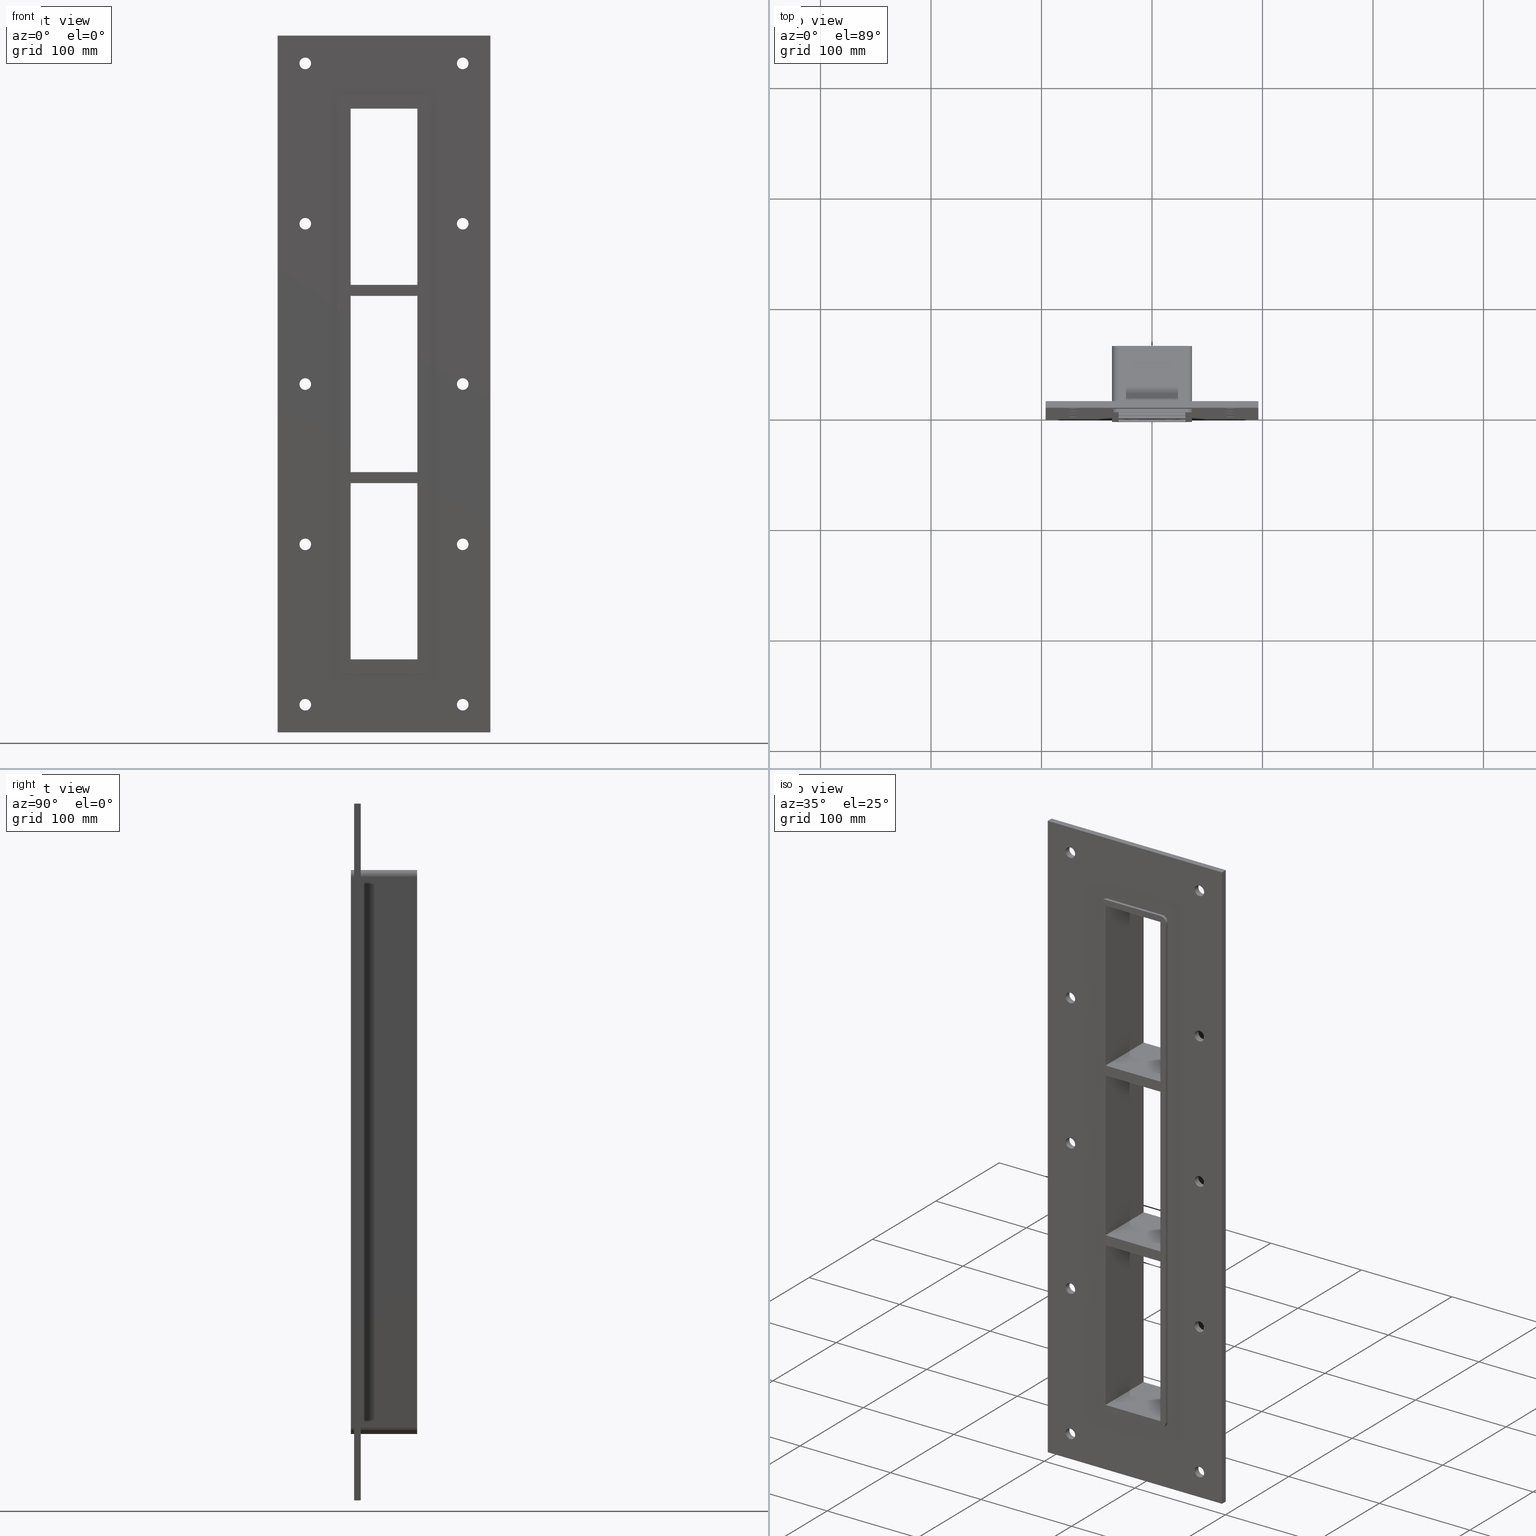
[diagram: canonical four-view strip — front | top / right | iso, engineering-drawing reading convention]
A machine part, canonical four-view strip (front | top / right | iso — engineering-drawing reading convention). The complete STEP part file that produces these views, byte-faithful:
ISO-10303-21;
HEADER;
/****************************************************************
 * Generated by software with PDElib inside                    *
 * PDElib Version v51a, created Wed 11/30/2011                  *
 * ITI Transcendata (http://www.transcendata.com/)              *
 ****************************************************************/
FILE_DESCRIPTION((''),'2;1');
FILE_NAME('L:\\roxtec-se\\Projects\\Ongoing_Projects\\12403 Transit Designer\\Product-data\\Product Data\\Reviwed & Approved\\Review\\GH\\STEP\\GH3+3+3X1.stp','2015-02-20T11:14:46',('se-emikul'),(''),'Autodesk Inventor 2013','Autodesk Inventor 2013','');
FILE_SCHEMA(('AUTOMOTIVE_DESIGN { 1 0 10303 214 1 1 1 1 }'));
ENDSEC;
DATA;
#5=APPLICATION_CONTEXT('automotive design');
#6=APPLICATION_PROTOCOL_DEFINITION('International Standard','automotive_design',2001,#5);
#7=PRODUCT_CONTEXT('',#5,'mechanical');
#8=PRODUCT('GH3+3+3X1','GH3+3+3X1',$,(#7));
#9=PRODUCT_RELATED_PRODUCT_CATEGORY('part',$,(#8));
#10=PRODUCT_DEFINITION_FORMATION('',$,#8);
#11=PRODUCT_DEFINITION_CONTEXT('part definition',#5,'design');
#12=PRODUCT_DEFINITION('',$,#10,#11);
#18=(NAMED_UNIT(*)PLANE_ANGLE_UNIT()SI_UNIT($,.RADIAN.));
#19=DIMENSIONAL_EXPONENTS(0.0,0.0,0.0,0.0,0.0,0.0,0.0);
#20=PLANE_ANGLE_MEASURE_WITH_UNIT(PLANE_ANGLE_MEASURE(0.0174532925),#18);
#24=(CONVERSION_BASED_UNIT('DEGREE',#20)NAMED_UNIT(#19)PLANE_ANGLE_UNIT());
#28=(NAMED_UNIT(*)SI_UNIT($,.STERADIAN.)SOLID_ANGLE_UNIT());
#32=(LENGTH_UNIT()NAMED_UNIT(*)SI_UNIT(.MILLI.,.METRE.));
#34=UNCERTAINTY_MEASURE_WITH_UNIT(LENGTH_MEASURE(0.01),#32,'DISTANCE_ACCURACY_VALUE','');
#36=(GEOMETRIC_REPRESENTATION_CONTEXT(3)GLOBAL_UNCERTAINTY_ASSIGNED_CONTEXT((#34))GLOBAL_UNIT_ASSIGNED_CONTEXT((#24,#28,#32))REPRESENTATION_CONTEXT('None','None'));
#37=AXIS2_PLACEMENT_3D('',#38,#39,#40);
#38=CARTESIAN_POINT('',(0.0,0.0,0.0));
#39=DIRECTION('',(0.0,0.0,1.0));
#40=DIRECTION('',(1.0,0.0,0.0));
#41=SHAPE_REPRESENTATION('',(#37),#36);
#42=PRODUCT_DEFINITION_SHAPE('','',#12);
#43=SHAPE_DEFINITION_REPRESENTATION(#42,#41);
#49=(NAMED_UNIT(*)PLANE_ANGLE_UNIT()SI_UNIT($,.RADIAN.));
#50=DIMENSIONAL_EXPONENTS(0.0,0.0,0.0,0.0,0.0,0.0,0.0);
#51=PLANE_ANGLE_MEASURE_WITH_UNIT(PLANE_ANGLE_MEASURE(0.0174532925),#49);
#55=(CONVERSION_BASED_UNIT('DEGREE',#51)NAMED_UNIT(#50)PLANE_ANGLE_UNIT());
#59=(NAMED_UNIT(*)SI_UNIT($,.STERADIAN.)SOLID_ANGLE_UNIT());
#63=(LENGTH_UNIT()NAMED_UNIT(*)SI_UNIT(.MILLI.,.METRE.));
#65=UNCERTAINTY_MEASURE_WITH_UNIT(LENGTH_MEASURE(0.000001),#63,'DISTANCE_ACCURACY_VALUE','');
#67=(GEOMETRIC_REPRESENTATION_CONTEXT(3)GLOBAL_UNCERTAINTY_ASSIGNED_CONTEXT((#65))GLOBAL_UNIT_ASSIGNED_CONTEXT((#55,#59,#63))REPRESENTATION_CONTEXT('','3D'));
#68=CARTESIAN_POINT('',(-71.250000000000085,661.95656957235519,-290.25));
#69=DIRECTION('',(0.0,-1.0,0.0));
#70=DIRECTION('',(1.0,0.0,0.0));
#71=AXIS2_PLACEMENT_3D('',#68,#69,#70);
#72=CYLINDRICAL_SURFACE('',#71,5.25);
#73=CARTESIAN_POINT('',(-76.500000000000085,5.999999999999943,-290.25));
#74=VERTEX_POINT('',#73);
#75=CARTESIAN_POINT('',(-71.250000000000085,5.999999999999943,-290.25));
#76=DIRECTION('',(0.0,-1.0,0.0));
#77=DIRECTION('',(1.0,0.0,0.0));
#78=AXIS2_PLACEMENT_3D('',#75,#76,#77);
#79=CIRCLE('',#78,5.25);
#80=EDGE_CURVE('',#74,#74,#79,.T.);
#81=ORIENTED_EDGE('',*,*,#80,.F.);
#82=EDGE_LOOP('',(#81));
#83=FACE_OUTER_BOUND('',#82,.T.);
#84=CARTESIAN_POINT('',(-66.000000000000085,0.0,-290.25));
#85=VERTEX_POINT('',#84);
#86=CARTESIAN_POINT('',(-71.250000000000085,0.0,-290.25));
#87=DIRECTION('',(0.0,1.0,0.0));
#88=DIRECTION('',(1.0,0.0,0.0));
#89=AXIS2_PLACEMENT_3D('',#86,#87,#88);
#90=CIRCLE('',#89,5.25);
#91=EDGE_CURVE('',#85,#85,#90,.T.);
#92=ORIENTED_EDGE('',*,*,#91,.F.);
#93=EDGE_LOOP('',(#92));
#94=FACE_BOUND('',#93,.T.);
#95=ADVANCED_FACE('',(#83,#94),#72,.F.);
#96=CARTESIAN_POINT('',(71.249999999999915,661.95656957235519,-145.15000000000001));
#97=DIRECTION('',(0.0,-1.0,0.0));
#98=DIRECTION('',(1.0,0.0,0.0));
#99=AXIS2_PLACEMENT_3D('',#96,#97,#98);
#100=CYLINDRICAL_SURFACE('',#99,5.25);
#101=CARTESIAN_POINT('',(65.999999999999915,5.999999999999943,-145.15000000000001));
#102=VERTEX_POINT('',#101);
#103=CARTESIAN_POINT('',(71.249999999999915,5.999999999999943,-145.15000000000001));
#104=DIRECTION('',(0.0,-1.0,0.0));
#105=DIRECTION('',(1.0,0.0,0.0));
#106=AXIS2_PLACEMENT_3D('',#103,#104,#105);
#107=CIRCLE('',#106,5.25);
#108=EDGE_CURVE('',#102,#102,#107,.T.);
#109=ORIENTED_EDGE('',*,*,#108,.F.);
#110=EDGE_LOOP('',(#109));
#111=FACE_OUTER_BOUND('',#110,.T.);
#112=CARTESIAN_POINT('',(76.499999999999915,0.0,-145.15000000000001));
#113=VERTEX_POINT('',#112);
#114=CARTESIAN_POINT('',(71.249999999999915,0.0,-145.15000000000001));
#115=DIRECTION('',(0.0,1.0,0.0));
#116=DIRECTION('',(1.0,0.0,0.0));
#117=AXIS2_PLACEMENT_3D('',#114,#115,#116);
#118=CIRCLE('',#117,5.25);
#119=EDGE_CURVE('',#113,#113,#118,.T.);
#120=ORIENTED_EDGE('',*,*,#119,.F.);
#121=EDGE_LOOP('',(#120));
#122=FACE_BOUND('',#121,.T.);
#123=ADVANCED_FACE('',(#111,#122),#100,.F.);
#124=CARTESIAN_POINT('',(-71.250000000000085,661.95656957235519,-145.15000000000001));
#125=DIRECTION('',(0.0,-1.0,0.0));
#126=DIRECTION('',(1.0,0.0,0.0));
#127=AXIS2_PLACEMENT_3D('',#124,#125,#126);
#128=CYLINDRICAL_SURFACE('',#127,5.25);
#129=CARTESIAN_POINT('',(-76.500000000000085,5.999999999999943,-145.15000000000001));
#130=VERTEX_POINT('',#129);
#131=CARTESIAN_POINT('',(-71.250000000000085,5.999999999999943,-145.15000000000001));
#132=DIRECTION('',(0.0,-1.0,0.0));
#133=DIRECTION('',(1.0,0.0,0.0));
#134=AXIS2_PLACEMENT_3D('',#131,#132,#133);
#135=CIRCLE('',#134,5.25);
#136=EDGE_CURVE('',#130,#130,#135,.T.);
#137=ORIENTED_EDGE('',*,*,#136,.F.);
#138=EDGE_LOOP('',(#137));
#139=FACE_OUTER_BOUND('',#138,.T.);
#140=CARTESIAN_POINT('',(-66.000000000000085,0.0,-145.15000000000001));
#141=VERTEX_POINT('',#140);
#142=CARTESIAN_POINT('',(-71.250000000000085,0.0,-145.15000000000001));
#143=DIRECTION('',(0.0,1.0,0.0));
#144=DIRECTION('',(1.0,0.0,0.0));
#145=AXIS2_PLACEMENT_3D('',#142,#143,#144);
#146=CIRCLE('',#145,5.25);
#147=EDGE_CURVE('',#141,#141,#146,.T.);
#148=ORIENTED_EDGE('',*,*,#147,.F.);
#149=EDGE_LOOP('',(#148));
#150=FACE_BOUND('',#149,.T.);
#151=ADVANCED_FACE('',(#139,#150),#128,.F.);
#152=CARTESIAN_POINT('',(71.249999999999915,661.95656957235519,-0.050000000000026));
#153=DIRECTION('',(0.0,-1.0,0.0));
#154=DIRECTION('',(1.0,0.0,0.0));
#155=AXIS2_PLACEMENT_3D('',#152,#153,#154);
#156=CYLINDRICAL_SURFACE('',#155,5.25);
#157=CARTESIAN_POINT('',(65.999999999999915,5.999999999999943,-0.050000000000026));
#158=VERTEX_POINT('',#157);
#159=CARTESIAN_POINT('',(71.249999999999915,5.999999999999943,-0.050000000000026));
#160=DIRECTION('',(0.0,-1.0,0.0));
#161=DIRECTION('',(1.0,0.0,0.0));
#162=AXIS2_PLACEMENT_3D('',#159,#160,#161);
#163=CIRCLE('',#162,5.25);
#164=EDGE_CURVE('',#158,#158,#163,.T.);
#165=ORIENTED_EDGE('',*,*,#164,.F.);
#166=EDGE_LOOP('',(#165));
#167=FACE_OUTER_BOUND('',#166,.T.);
#168=CARTESIAN_POINT('',(76.499999999999915,0.0,-0.050000000000026));
#169=VERTEX_POINT('',#168);
#170=CARTESIAN_POINT('',(71.249999999999915,0.0,-0.050000000000026));
#171=DIRECTION('',(0.0,1.0,0.0));
#172=DIRECTION('',(1.0,0.0,0.0));
#173=AXIS2_PLACEMENT_3D('',#170,#171,#172);
#174=CIRCLE('',#173,5.25);
#175=EDGE_CURVE('',#169,#169,#174,.T.);
#176=ORIENTED_EDGE('',*,*,#175,.F.);
#177=EDGE_LOOP('',(#176));
#178=FACE_BOUND('',#177,.T.);
#179=ADVANCED_FACE('',(#167,#178),#156,.F.);
#180=CARTESIAN_POINT('',(-71.250000000000085,661.95656957235519,-0.050000000000026));
#181=DIRECTION('',(0.0,-1.0,0.0));
#182=DIRECTION('',(1.0,0.0,0.0));
#183=AXIS2_PLACEMENT_3D('',#180,#181,#182);
#184=CYLINDRICAL_SURFACE('',#183,5.25);
#185=CARTESIAN_POINT('',(-76.500000000000085,5.999999999999943,-0.050000000000026));
#186=VERTEX_POINT('',#185);
#187=CARTESIAN_POINT('',(-71.250000000000085,5.999999999999943,-0.050000000000026));
#188=DIRECTION('',(0.0,-1.0,0.0));
#189=DIRECTION('',(1.0,0.0,0.0));
#190=AXIS2_PLACEMENT_3D('',#187,#188,#189);
#191=CIRCLE('',#190,5.25);
#192=EDGE_CURVE('',#186,#186,#191,.T.);
#193=ORIENTED_EDGE('',*,*,#192,.F.);
#194=EDGE_LOOP('',(#193));
#195=FACE_OUTER_BOUND('',#194,.T.);
#196=CARTESIAN_POINT('',(-66.000000000000085,0.0,-0.050000000000026));
#197=VERTEX_POINT('',#196);
#198=CARTESIAN_POINT('',(-71.250000000000085,0.0,-0.050000000000026));
#199=DIRECTION('',(0.0,1.0,0.0));
#200=DIRECTION('',(1.0,0.0,0.0));
#201=AXIS2_PLACEMENT_3D('',#198,#199,#200);
#202=CIRCLE('',#201,5.25);
#203=EDGE_CURVE('',#197,#197,#202,.T.);
#204=ORIENTED_EDGE('',*,*,#203,.F.);
#205=EDGE_LOOP('',(#204));
#206=FACE_BOUND('',#205,.T.);
#207=ADVANCED_FACE('',(#195,#206),#184,.F.);
#208=CARTESIAN_POINT('',(71.249999999999915,661.95656957235519,145.04999999999995));
#209=DIRECTION('',(0.0,-1.0,0.0));
#210=DIRECTION('',(1.0,0.0,0.0));
#211=AXIS2_PLACEMENT_3D('',#208,#209,#210);
#212=CYLINDRICAL_SURFACE('',#211,5.25);
#213=CARTESIAN_POINT('',(65.999999999999915,5.999999999999943,145.04999999999995));
#214=VERTEX_POINT('',#213);
#215=CARTESIAN_POINT('',(71.249999999999915,5.999999999999943,145.04999999999995));
#216=DIRECTION('',(0.0,-1.0,0.0));
#217=DIRECTION('',(1.0,0.0,0.0));
#218=AXIS2_PLACEMENT_3D('',#215,#216,#217);
#219=CIRCLE('',#218,5.25);
#220=EDGE_CURVE('',#214,#214,#219,.T.);
#221=ORIENTED_EDGE('',*,*,#220,.F.);
#222=EDGE_LOOP('',(#221));
#223=FACE_OUTER_BOUND('',#222,.T.);
#224=CARTESIAN_POINT('',(76.499999999999915,0.0,145.04999999999995));
#225=VERTEX_POINT('',#224);
#226=CARTESIAN_POINT('',(71.249999999999915,0.0,145.04999999999995));
#227=DIRECTION('',(0.0,1.0,0.0));
#228=DIRECTION('',(1.0,0.0,0.0));
#229=AXIS2_PLACEMENT_3D('',#226,#227,#228);
#230=CIRCLE('',#229,5.25);
#231=EDGE_CURVE('',#225,#225,#230,.T.);
#232=ORIENTED_EDGE('',*,*,#231,.F.);
#233=EDGE_LOOP('',(#232));
#234=FACE_BOUND('',#233,.T.);
#235=ADVANCED_FACE('',(#223,#234),#212,.F.);
#236=CARTESIAN_POINT('',(-71.250000000000085,661.95656957235519,145.04999999999995));
#237=DIRECTION('',(0.0,-1.0,0.0));
#238=DIRECTION('',(1.0,0.0,0.0));
#239=AXIS2_PLACEMENT_3D('',#236,#237,#238);
#240=CYLINDRICAL_SURFACE('',#239,5.25);
#241=CARTESIAN_POINT('',(-76.500000000000085,5.999999999999943,145.04999999999995));
#242=VERTEX_POINT('',#241);
#243=CARTESIAN_POINT('',(-71.250000000000085,5.999999999999943,145.04999999999995));
#244=DIRECTION('',(0.0,-1.0,0.0));
#245=DIRECTION('',(1.0,0.0,0.0));
#246=AXIS2_PLACEMENT_3D('',#243,#244,#245);
#247=CIRCLE('',#246,5.25);
#248=EDGE_CURVE('',#242,#242,#247,.T.);
#249=ORIENTED_EDGE('',*,*,#248,.F.);
#250=EDGE_LOOP('',(#249));
#251=FACE_OUTER_BOUND('',#250,.T.);
#252=CARTESIAN_POINT('',(-66.000000000000085,0.0,145.04999999999995));
#253=VERTEX_POINT('',#252);
#254=CARTESIAN_POINT('',(-71.250000000000085,0.0,145.04999999999995));
#255=DIRECTION('',(0.0,1.0,0.0));
#256=DIRECTION('',(1.0,0.0,0.0));
#257=AXIS2_PLACEMENT_3D('',#254,#255,#256);
#258=CIRCLE('',#257,5.25);
#259=EDGE_CURVE('',#253,#253,#258,.T.);
#260=ORIENTED_EDGE('',*,*,#259,.F.);
#261=EDGE_LOOP('',(#260));
#262=FACE_BOUND('',#261,.T.);
#263=ADVANCED_FACE('',(#251,#262),#240,.F.);
#264=CARTESIAN_POINT('',(71.249999999999915,661.95656957235519,-290.25000000000006));
#265=DIRECTION('',(0.0,-1.0,0.0));
#266=DIRECTION('',(1.0,0.0,0.0));
#267=AXIS2_PLACEMENT_3D('',#264,#265,#266);
#268=CYLINDRICAL_SURFACE('',#267,5.25);
#269=CARTESIAN_POINT('',(65.999999999999915,5.999999999999943,-290.25000000000006));
#270=VERTEX_POINT('',#269);
#271=CARTESIAN_POINT('',(71.249999999999915,5.999999999999943,-290.25000000000006));
#272=DIRECTION('',(0.0,-1.0,0.0));
#273=DIRECTION('',(1.0,0.0,0.0));
#274=AXIS2_PLACEMENT_3D('',#271,#272,#273);
#275=CIRCLE('',#274,5.25);
#276=EDGE_CURVE('',#270,#270,#275,.T.);
#277=ORIENTED_EDGE('',*,*,#276,.F.);
#278=EDGE_LOOP('',(#277));
#279=FACE_OUTER_BOUND('',#278,.T.);
#280=CARTESIAN_POINT('',(76.499999999999915,0.0,-290.25000000000006));
#281=VERTEX_POINT('',#280);
#282=CARTESIAN_POINT('',(71.249999999999915,0.0,-290.25000000000006));
#283=DIRECTION('',(0.0,1.0,0.0));
#284=DIRECTION('',(1.0,0.0,0.0));
#285=AXIS2_PLACEMENT_3D('',#282,#283,#284);
#286=CIRCLE('',#285,5.25);
#287=EDGE_CURVE('',#281,#281,#286,.T.);
#288=ORIENTED_EDGE('',*,*,#287,.F.);
#289=EDGE_LOOP('',(#288));
#290=FACE_BOUND('',#289,.T.);
#291=ADVANCED_FACE('',(#279,#290),#268,.F.);
#292=CARTESIAN_POINT('',(-71.250000000000085,661.95656957235519,290.14999999999992));
#293=DIRECTION('',(0.0,-1.0,0.0));
#294=DIRECTION('',(1.0,0.0,0.0));
#295=AXIS2_PLACEMENT_3D('',#292,#293,#294);
#296=CYLINDRICAL_SURFACE('',#295,5.25);
#297=CARTESIAN_POINT('',(-76.500000000000085,5.999999999999943,290.14999999999992));
#298=VERTEX_POINT('',#297);
#299=CARTESIAN_POINT('',(-71.250000000000085,5.999999999999943,290.14999999999992));
#300=DIRECTION('',(0.0,-1.0,0.0));
#301=DIRECTION('',(1.0,0.0,0.0));
#302=AXIS2_PLACEMENT_3D('',#299,#300,#301);
#303=CIRCLE('',#302,5.25);
#304=EDGE_CURVE('',#298,#298,#303,.T.);
#305=ORIENTED_EDGE('',*,*,#304,.F.);
#306=EDGE_LOOP('',(#305));
#307=FACE_OUTER_BOUND('',#306,.T.);
#308=CARTESIAN_POINT('',(-66.000000000000085,0.0,290.14999999999992));
#309=VERTEX_POINT('',#308);
#310=CARTESIAN_POINT('',(-71.250000000000085,0.0,290.14999999999992));
#311=DIRECTION('',(0.0,1.0,0.0));
#312=DIRECTION('',(1.0,0.0,0.0));
#313=AXIS2_PLACEMENT_3D('',#310,#311,#312);
#314=CIRCLE('',#313,5.25);
#315=EDGE_CURVE('',#309,#309,#314,.T.);
#316=ORIENTED_EDGE('',*,*,#315,.F.);
#317=EDGE_LOOP('',(#316));
#318=FACE_BOUND('',#317,.T.);
#319=ADVANCED_FACE('',(#307,#318),#296,.F.);
#320=CARTESIAN_POINT('',(71.249999999999915,661.95656957235519,290.14999999999992));
#321=DIRECTION('',(0.0,-1.0,0.0));
#322=DIRECTION('',(1.0,0.0,0.0));
#323=AXIS2_PLACEMENT_3D('',#320,#321,#322);
#324=CYLINDRICAL_SURFACE('',#323,5.25);
#325=CARTESIAN_POINT('',(65.999999999999915,5.999999999999943,290.14999999999992));
#326=VERTEX_POINT('',#325);
#327=CARTESIAN_POINT('',(71.249999999999915,5.999999999999943,290.14999999999992));
#328=DIRECTION('',(0.0,-1.0,0.0));
#329=DIRECTION('',(1.0,0.0,0.0));
#330=AXIS2_PLACEMENT_3D('',#327,#328,#329);
#331=CIRCLE('',#330,5.25);
#332=EDGE_CURVE('',#326,#326,#331,.T.);
#333=ORIENTED_EDGE('',*,*,#332,.F.);
#334=EDGE_LOOP('',(#333));
#335=FACE_OUTER_BOUND('',#334,.T.);
#336=CARTESIAN_POINT('',(76.499999999999915,0.0,290.14999999999992));
#337=VERTEX_POINT('',#336);
#338=CARTESIAN_POINT('',(71.249999999999915,0.0,290.14999999999992));
#339=DIRECTION('',(0.0,1.0,0.0));
#340=DIRECTION('',(1.0,0.0,0.0));
#341=AXIS2_PLACEMENT_3D('',#338,#339,#340);
#342=CIRCLE('',#341,5.25);
#343=EDGE_CURVE('',#337,#337,#342,.T.);
#344=ORIENTED_EDGE('',*,*,#343,.F.);
#345=EDGE_LOOP('',(#344));
#346=FACE_BOUND('',#345,.T.);
#347=ADVANCED_FACE('',(#335,#346),#324,.F.);
#348=CARTESIAN_POINT('',(30.249999999996362,-3.0,79.749999999989214));
#349=DIRECTION('',(0.0,0.0,-1.0));
#350=DIRECTION('',(-1.0,0.0,0.0));
#351=AXIS2_PLACEMENT_3D('',#348,#349,#350);
#352=PLANE('',#351);
#353=CARTESIAN_POINT('',(30.249999999996362,-3.0,79.749999999989214));
#354=VERTEX_POINT('',#353);
#355=CARTESIAN_POINT('',(-30.249999999997065,-3.0,79.749999999989569));
#356=VERTEX_POINT('',#355);
#357=CARTESIAN_POINT('',(30.249999999996362,-3.0,79.749999999989214));
#358=DIRECTION('',(-1.0,0.0,0.0));
#359=VECTOR('',#358,60.499999999993427);
#360=LINE('',#357,#359);
#361=EDGE_CURVE('',#354,#356,#360,.T.);
#362=ORIENTED_EDGE('',*,*,#361,.T.);
#363=CARTESIAN_POINT('',(-30.249999999997065,57.0,79.749999999989569));
#364=VERTEX_POINT('',#363);
#365=CARTESIAN_POINT('',(-30.249999999999986,57.000000000000007,79.749999999989583));
#366=DIRECTION('',(0.0,-1.0,0.0));
#367=VECTOR('',#366,60.000000000000007);
#368=LINE('',#365,#367);
#369=EDGE_CURVE('',#364,#356,#368,.T.);
#370=ORIENTED_EDGE('',*,*,#369,.F.);
#371=CARTESIAN_POINT('',(30.249999999996366,57.0,79.749999999989214));
#372=VERTEX_POINT('',#371);
#373=CARTESIAN_POINT('',(30.249999999996362,57.0,79.749999999989214));
#374=DIRECTION('',(-1.0,0.0,0.0));
#375=VECTOR('',#374,60.499999999993427);
#376=LINE('',#373,#375);
#377=EDGE_CURVE('',#372,#364,#376,.T.);
#378=ORIENTED_EDGE('',*,*,#377,.F.);
#379=CARTESIAN_POINT('',(30.249999999999986,-3.0,79.749999999989228));
#380=DIRECTION('',(0.0,1.0,0.0));
#381=VECTOR('',#380,60.000000000000007);
#382=LINE('',#379,#381);
#383=EDGE_CURVE('',#354,#372,#382,.T.);
#384=ORIENTED_EDGE('',*,*,#383,.F.);
#385=EDGE_LOOP('',(#362,#370,#378,#384));
#386=FACE_OUTER_BOUND('',#385,.T.);
#387=ADVANCED_FACE('',(#386),#352,.T.);
#388=CARTESIAN_POINT('',(-30.249999999997069,-3.0,89.750000000000938));
#389=DIRECTION('',(0.0,0.0,1.0));
#390=DIRECTION('',(1.0,0.0,0.0));
#391=AXIS2_PLACEMENT_3D('',#388,#389,#390);
#392=PLANE('',#391);
#393=CARTESIAN_POINT('',(-30.249999999997069,-3.0,89.750000000000938));
#394=VERTEX_POINT('',#393);
#395=CARTESIAN_POINT('',(30.249999999999023,-3.0,89.750000000000938));
#396=VERTEX_POINT('',#395);
#397=CARTESIAN_POINT('',(-30.249999999997069,-3.0,89.750000000000938));
#398=DIRECTION('',(1.0,0.0,0.0));
#399=VECTOR('',#398,60.499999999996092);
#400=LINE('',#397,#399);
#401=EDGE_CURVE('',#394,#396,#400,.T.);
#402=ORIENTED_EDGE('',*,*,#401,.T.);
#403=CARTESIAN_POINT('',(30.249999999999023,57.0,89.750000000000938));
#404=VERTEX_POINT('',#403);
#405=CARTESIAN_POINT('',(30.249999999999986,57.000000000000007,89.750000000000938));
#406=DIRECTION('',(0.0,-1.0,0.0));
#407=VECTOR('',#406,60.000000000000007);
#408=LINE('',#405,#407);
#409=EDGE_CURVE('',#404,#396,#408,.T.);
#410=ORIENTED_EDGE('',*,*,#409,.F.);
#411=CARTESIAN_POINT('',(-30.249999999997069,57.0,89.750000000000938));
#412=VERTEX_POINT('',#411);
#413=CARTESIAN_POINT('',(-30.249999999997069,57.0,89.750000000000938));
#414=DIRECTION('',(1.0,0.0,0.0));
#415=VECTOR('',#414,60.499999999996092);
#416=LINE('',#413,#415);
#417=EDGE_CURVE('',#412,#404,#416,.T.);
#418=ORIENTED_EDGE('',*,*,#417,.F.);
#419=CARTESIAN_POINT('',(-30.249999999999986,-3.0,89.750000000000924));
#420=DIRECTION('',(0.0,1.0,0.0));
#421=VECTOR('',#420,60.000000000000007);
#422=LINE('',#419,#421);
#423=EDGE_CURVE('',#394,#412,#422,.T.);
#424=ORIENTED_EDGE('',*,*,#423,.F.);
#425=EDGE_LOOP('',(#402,#410,#418,#424));
#426=FACE_OUTER_BOUND('',#425,.T.);
#427=ADVANCED_FACE('',(#426),#392,.T.);
#428=CARTESIAN_POINT('',(-30.249999999999986,0.0,-249.25));
#429=DIRECTION('',(-1.0,0.0,0.0));
#430=DIRECTION('',(0.0,0.0,1.0));
#431=AXIS2_PLACEMENT_3D('',#428,#429,#430);
#432=PLANE('',#431);
#433=ORIENTED_EDGE('',*,*,#423,.T.);
#434=CARTESIAN_POINT('',(-30.249999999999986,57.0,249.25));
#435=VERTEX_POINT('',#434);
#436=CARTESIAN_POINT('',(-30.249999999999986,57.0,249.25));
#437=DIRECTION('',(0.0,0.0,-1.0));
#438=VECTOR('',#437,159.49999999999909);
#439=LINE('',#436,#438);
#440=EDGE_CURVE('',#435,#412,#439,.T.);
#441=ORIENTED_EDGE('',*,*,#440,.F.);
#442=CARTESIAN_POINT('',(-30.249999999999986,-3.0,249.25));
#443=VERTEX_POINT('',#442);
#444=CARTESIAN_POINT('',(-30.249999999999986,-3.0,249.25));
#445=DIRECTION('',(0.0,1.0,0.0));
#446=VECTOR('',#445,60.0);
#447=LINE('',#444,#446);
#448=EDGE_CURVE('',#443,#435,#447,.T.);
#449=ORIENTED_EDGE('',*,*,#448,.F.);
#450=CARTESIAN_POINT('',(-30.249999999999986,-3.0,89.750000000000909));
#451=DIRECTION('',(0.0,0.0,1.0));
#452=VECTOR('',#451,159.49999999999909);
#453=LINE('',#450,#452);
#454=EDGE_CURVE('',#394,#443,#453,.T.);
#455=ORIENTED_EDGE('',*,*,#454,.F.);
#456=EDGE_LOOP('',(#433,#441,#449,#455));
#457=FACE_OUTER_BOUND('',#456,.T.);
#458=ADVANCED_FACE('',(#457),#432,.F.);
#459=CARTESIAN_POINT('',(30.249999999999986,0.0,249.25));
#460=DIRECTION('',(1.0,0.0,0.0));
#461=DIRECTION('',(0.0,0.0,-1.0));
#462=AXIS2_PLACEMENT_3D('',#459,#460,#461);
#463=PLANE('',#462);
#464=ORIENTED_EDGE('',*,*,#383,.T.);
#465=CARTESIAN_POINT('',(30.249999999999023,57.0,-79.749999999999091));
#466=VERTEX_POINT('',#465);
#467=CARTESIAN_POINT('',(30.249999999999986,57.0,-79.749999999999091));
#468=DIRECTION('',(0.0,0.0,1.0));
#469=VECTOR('',#468,159.49999999998829);
#470=LINE('',#467,#469);
#471=EDGE_CURVE('',#466,#372,#470,.T.);
#472=ORIENTED_EDGE('',*,*,#471,.F.);
#473=CARTESIAN_POINT('',(30.249999999999023,-3.0,-79.749999999999091));
#474=VERTEX_POINT('',#473);
#475=CARTESIAN_POINT('',(30.249999999999986,57.000000000000007,-79.749999999999105));
#476=DIRECTION('',(0.0,-1.0,0.0));
#477=VECTOR('',#476,60.000000000000007);
#478=LINE('',#475,#477);
#479=EDGE_CURVE('',#466,#474,#478,.T.);
#480=ORIENTED_EDGE('',*,*,#479,.T.);
#481=CARTESIAN_POINT('',(30.249999999999986,-3.0,79.749999999989214));
#482=DIRECTION('',(0.0,0.0,-1.0));
#483=VECTOR('',#482,159.49999999998829);
#484=LINE('',#481,#483);
#485=EDGE_CURVE('',#354,#474,#484,.T.);
#486=ORIENTED_EDGE('',*,*,#485,.F.);
#487=EDGE_LOOP('',(#464,#472,#480,#486));
#488=FACE_OUTER_BOUND('',#487,.T.);
#489=ADVANCED_FACE('',(#488),#463,.F.);
#490=CARTESIAN_POINT('',(30.249999999999986,0.0,249.25));
#491=DIRECTION('',(1.0,0.0,0.0));
#492=DIRECTION('',(0.0,0.0,-1.0));
#493=AXIS2_PLACEMENT_3D('',#490,#491,#492);
#494=PLANE('',#493);
#495=ORIENTED_EDGE('',*,*,#409,.T.);
#496=CARTESIAN_POINT('',(30.249999999999986,-3.0,249.25));
#497=VERTEX_POINT('',#496);
#498=CARTESIAN_POINT('',(30.249999999999986,-3.0,249.25));
#499=DIRECTION('',(0.0,0.0,-1.0));
#500=VECTOR('',#499,159.49999999999906);
#501=LINE('',#498,#500);
#502=EDGE_CURVE('',#497,#396,#501,.T.);
#503=ORIENTED_EDGE('',*,*,#502,.F.);
#504=CARTESIAN_POINT('',(30.249999999999986,57.0,249.25));
#505=VERTEX_POINT('',#504);
#506=CARTESIAN_POINT('',(30.249999999999986,-3.0,249.25));
#507=DIRECTION('',(0.0,1.0,0.0));
#508=VECTOR('',#507,60.0);
#509=LINE('',#506,#508);
#510=EDGE_CURVE('',#497,#505,#509,.T.);
#511=ORIENTED_EDGE('',*,*,#510,.T.);
#512=CARTESIAN_POINT('',(30.249999999999986,57.0,89.750000000000938));
#513=DIRECTION('',(0.0,0.0,1.0));
#514=VECTOR('',#513,159.49999999999906);
#515=LINE('',#512,#514);
#516=EDGE_CURVE('',#404,#505,#515,.T.);
#517=ORIENTED_EDGE('',*,*,#516,.F.);
#518=EDGE_LOOP('',(#495,#503,#511,#517));
#519=FACE_OUTER_BOUND('',#518,.T.);
#520=ADVANCED_FACE('',(#519),#494,.F.);
#521=CARTESIAN_POINT('',(30.249999999996362,-3.0,-89.750000000010814));
#522=DIRECTION('',(0.0,0.0,-1.0));
#523=DIRECTION('',(-1.0,0.0,0.0));
#524=AXIS2_PLACEMENT_3D('',#521,#522,#523);
#525=PLANE('',#524);
#526=CARTESIAN_POINT('',(30.249999999996362,-3.0,-89.750000000010814));
#527=VERTEX_POINT('',#526);
#528=CARTESIAN_POINT('',(-30.249999999997065,-3.0,-89.750000000010459));
#529=VERTEX_POINT('',#528);
#530=CARTESIAN_POINT('',(30.249999999996362,-3.0,-89.750000000010814));
#531=DIRECTION('',(-1.0,0.0,0.0));
#532=VECTOR('',#531,60.499999999993427);
#533=LINE('',#530,#532);
#534=EDGE_CURVE('',#527,#529,#533,.T.);
#535=ORIENTED_EDGE('',*,*,#534,.T.);
#536=CARTESIAN_POINT('',(-30.249999999997065,57.0,-89.750000000010459));
#537=VERTEX_POINT('',#536);
#538=CARTESIAN_POINT('',(-30.249999999999986,57.000000000000007,-89.750000000010473));
#539=DIRECTION('',(0.0,-1.0,0.0));
#540=VECTOR('',#539,60.000000000000007);
#541=LINE('',#538,#540);
#542=EDGE_CURVE('',#537,#529,#541,.T.);
#543=ORIENTED_EDGE('',*,*,#542,.F.);
#544=CARTESIAN_POINT('',(30.249999999996366,57.0,-89.750000000010814));
#545=VERTEX_POINT('',#544);
#546=CARTESIAN_POINT('',(30.249999999996362,57.0,-89.750000000010814));
#547=DIRECTION('',(-1.0,0.0,0.0));
#548=VECTOR('',#547,60.499999999993427);
#549=LINE('',#546,#548);
#550=EDGE_CURVE('',#545,#537,#549,.T.);
#551=ORIENTED_EDGE('',*,*,#550,.F.);
#552=CARTESIAN_POINT('',(30.249999999999986,-3.0,-89.750000000010829));
#553=DIRECTION('',(0.0,1.0,0.0));
#554=VECTOR('',#553,60.000000000000007);
#555=LINE('',#552,#554);
#556=EDGE_CURVE('',#527,#545,#555,.T.);
#557=ORIENTED_EDGE('',*,*,#556,.F.);
#558=EDGE_LOOP('',(#535,#543,#551,#557));
#559=FACE_OUTER_BOUND('',#558,.T.);
#560=ADVANCED_FACE('',(#559),#525,.T.);
#561=CARTESIAN_POINT('',(-30.249999999997069,-3.0,-79.749999999999105));
#562=DIRECTION('',(0.0,0.0,1.0));
#563=DIRECTION('',(1.0,0.0,0.0));
#564=AXIS2_PLACEMENT_3D('',#561,#562,#563);
#565=PLANE('',#564);
#566=CARTESIAN_POINT('',(-30.249999999997069,-3.0,-79.749999999999105));
#567=VERTEX_POINT('',#566);
#568=CARTESIAN_POINT('',(-30.249999999997069,-3.0,-79.749999999999105));
#569=DIRECTION('',(1.0,0.0,0.0));
#570=VECTOR('',#569,60.499999999996092);
#571=LINE('',#568,#570);
#572=EDGE_CURVE('',#567,#474,#571,.T.);
#573=ORIENTED_EDGE('',*,*,#572,.T.);
#574=ORIENTED_EDGE('',*,*,#479,.F.);
#575=CARTESIAN_POINT('',(-30.249999999997069,57.0,-79.749999999999105));
#576=VERTEX_POINT('',#575);
#577=CARTESIAN_POINT('',(-30.249999999997069,57.0,-79.749999999999105));
#578=DIRECTION('',(1.0,0.0,0.0));
#579=VECTOR('',#578,60.499999999996092);
#580=LINE('',#577,#579);
#581=EDGE_CURVE('',#576,#466,#580,.T.);
#582=ORIENTED_EDGE('',*,*,#581,.F.);
#583=CARTESIAN_POINT('',(-30.249999999999986,-3.0,-79.749999999999105));
#584=DIRECTION('',(0.0,1.0,0.0));
#585=VECTOR('',#584,60.000000000000007);
#586=LINE('',#583,#585);
#587=EDGE_CURVE('',#567,#576,#586,.T.);
#588=ORIENTED_EDGE('',*,*,#587,.F.);
#589=EDGE_LOOP('',(#573,#574,#582,#588));
#590=FACE_OUTER_BOUND('',#589,.T.);
#591=ADVANCED_FACE('',(#590),#565,.T.);
#592=CARTESIAN_POINT('',(-30.249999999999986,0.0,-249.25));
#593=DIRECTION('',(-1.0,0.0,0.0));
#594=DIRECTION('',(0.0,0.0,1.0));
#595=AXIS2_PLACEMENT_3D('',#592,#593,#594);
#596=PLANE('',#595);
#597=ORIENTED_EDGE('',*,*,#369,.T.);
#598=CARTESIAN_POINT('',(-30.249999999999986,-3.0,-79.749999999999091));
#599=DIRECTION('',(0.0,0.0,1.0));
#600=VECTOR('',#599,159.49999999998863);
#601=LINE('',#598,#600);
#602=EDGE_CURVE('',#567,#356,#601,.T.);
#603=ORIENTED_EDGE('',*,*,#602,.F.);
#604=ORIENTED_EDGE('',*,*,#587,.T.);
#605=CARTESIAN_POINT('',(-30.249999999999986,57.0,79.749999999989541));
#606=DIRECTION('',(0.0,0.0,-1.0));
#607=VECTOR('',#606,159.49999999998863);
#608=LINE('',#605,#607);
#609=EDGE_CURVE('',#364,#576,#608,.T.);
#610=ORIENTED_EDGE('',*,*,#609,.F.);
#611=EDGE_LOOP('',(#597,#603,#604,#610));
#612=FACE_OUTER_BOUND('',#611,.T.);
#613=ADVANCED_FACE('',(#612),#596,.F.);
#614=CARTESIAN_POINT('',(30.249999999999986,0.0,249.25));
#615=DIRECTION('',(1.0,0.0,0.0));
#616=DIRECTION('',(0.0,0.0,-1.0));
#617=AXIS2_PLACEMENT_3D('',#614,#615,#616);
#618=PLANE('',#617);
#619=ORIENTED_EDGE('',*,*,#556,.T.);
#620=CARTESIAN_POINT('',(30.249999999999986,57.0,-249.25));
#621=VERTEX_POINT('',#620);
#622=CARTESIAN_POINT('',(30.249999999999986,57.0,-249.25));
#623=DIRECTION('',(0.0,0.0,1.0));
#624=VECTOR('',#623,159.4999999999892);
#625=LINE('',#622,#624);
#626=EDGE_CURVE('',#621,#545,#625,.T.);
#627=ORIENTED_EDGE('',*,*,#626,.F.);
#628=CARTESIAN_POINT('',(30.249999999999986,-3.0,-249.25));
#629=VERTEX_POINT('',#628);
#630=CARTESIAN_POINT('',(30.249999999999986,56.999999999999993,-249.25));
#631=DIRECTION('',(0.0,-1.0,0.0));
#632=VECTOR('',#631,59.999999999999993);
#633=LINE('',#630,#632);
#634=EDGE_CURVE('',#621,#629,#633,.T.);
#635=ORIENTED_EDGE('',*,*,#634,.T.);
#636=CARTESIAN_POINT('',(30.249999999999986,-3.0,-89.7500000000108));
#637=DIRECTION('',(0.0,0.0,-1.0));
#638=VECTOR('',#637,159.4999999999892);
#639=LINE('',#636,#638);
#640=EDGE_CURVE('',#527,#629,#639,.T.);
#641=ORIENTED_EDGE('',*,*,#640,.F.);
#642=EDGE_LOOP('',(#619,#627,#635,#641));
#643=FACE_OUTER_BOUND('',#642,.T.);
#644=ADVANCED_FACE('',(#643),#618,.F.);
#645=CARTESIAN_POINT('',(0.0,6.000000000000001,-2.590071E-014));
#646=DIRECTION('',(0.0,1.0,0.0));
#647=DIRECTION('',(0.0,0.0,1.0));
#648=AXIS2_PLACEMENT_3D('',#645,#646,#647);
#649=PLANE('',#648);
#650=CARTESIAN_POINT('',(-96.249999999999986,6.000000000000001,315.25));
#651=VERTEX_POINT('',#650);
#652=CARTESIAN_POINT('',(96.249999999999986,6.000000000000001,315.25));
#653=VERTEX_POINT('',#652);
#654=CARTESIAN_POINT('',(-96.249999999999986,6.000000000000001,315.25));
#655=DIRECTION('',(1.0,0.0,0.0));
#656=VECTOR('',#655,192.49999999999997);
#657=LINE('',#654,#656);
#658=EDGE_CURVE('',#651,#653,#657,.T.);
#659=ORIENTED_EDGE('',*,*,#658,.T.);
#660=CARTESIAN_POINT('',(96.249999999999986,6.000000000000001,-315.25000000000011));
#661=VERTEX_POINT('',#660);
#662=CARTESIAN_POINT('',(96.249999999999986,6.000000000000001,315.25));
#663=DIRECTION('',(0.0,0.0,-1.0));
#664=VECTOR('',#663,630.50000000000011);
#665=LINE('',#662,#664);
#666=EDGE_CURVE('',#653,#661,#665,.T.);
#667=ORIENTED_EDGE('',*,*,#666,.T.);
#668=CARTESIAN_POINT('',(-96.249999999999986,6.000000000000001,-315.25000000000011));
#669=VERTEX_POINT('',#668);
#670=CARTESIAN_POINT('',(96.249999999999986,6.000000000000001,-315.25000000000006));
#671=DIRECTION('',(-1.0,0.0,0.0));
#672=VECTOR('',#671,192.49999999999997);
#673=LINE('',#670,#672);
#674=EDGE_CURVE('',#661,#669,#673,.T.);
#675=ORIENTED_EDGE('',*,*,#674,.T.);
#676=CARTESIAN_POINT('',(-96.249999999999986,6.000000000000001,-315.25000000000006));
#677=DIRECTION('',(0.0,0.0,1.0));
#678=VECTOR('',#677,630.50000000000011);
#679=LINE('',#676,#678);
#680=EDGE_CURVE('',#669,#651,#679,.T.);
#681=ORIENTED_EDGE('',*,*,#680,.T.);
#682=EDGE_LOOP('',(#659,#667,#675,#681));
#683=FACE_OUTER_BOUND('',#682,.T.);
#684=ORIENTED_EDGE('',*,*,#80,.T.);
#685=EDGE_LOOP('',(#684));
#686=FACE_BOUND('',#685,.T.);
#687=ORIENTED_EDGE('',*,*,#108,.T.);
#688=EDGE_LOOP('',(#687));
#689=FACE_BOUND('',#688,.T.);
#690=ORIENTED_EDGE('',*,*,#136,.T.);
#691=EDGE_LOOP('',(#690));
#692=FACE_BOUND('',#691,.T.);
#693=ORIENTED_EDGE('',*,*,#164,.T.);
#694=EDGE_LOOP('',(#693));
#695=FACE_BOUND('',#694,.T.);
#696=ORIENTED_EDGE('',*,*,#192,.T.);
#697=EDGE_LOOP('',(#696));
#698=FACE_BOUND('',#697,.T.);
#699=ORIENTED_EDGE('',*,*,#220,.T.);
#700=EDGE_LOOP('',(#699));
#701=FACE_BOUND('',#700,.T.);
#702=ORIENTED_EDGE('',*,*,#248,.T.);
#703=EDGE_LOOP('',(#702));
#704=FACE_BOUND('',#703,.T.);
#705=ORIENTED_EDGE('',*,*,#276,.T.);
#706=EDGE_LOOP('',(#705));
#707=FACE_BOUND('',#706,.T.);
#708=ORIENTED_EDGE('',*,*,#304,.T.);
#709=EDGE_LOOP('',(#708));
#710=FACE_BOUND('',#709,.T.);
#711=ORIENTED_EDGE('',*,*,#332,.T.);
#712=EDGE_LOOP('',(#711));
#713=FACE_BOUND('',#712,.T.);
#714=CARTESIAN_POINT('',(-36.25,6.000000000000001,249.25));
#715=VERTEX_POINT('',#714);
#716=CARTESIAN_POINT('',(-30.250000000000004,6.000000000000001,255.25000000000003));
#717=VERTEX_POINT('',#716);
#718=CARTESIAN_POINT('',(-30.250000000000004,6.000000000000001,249.25));
#719=DIRECTION('',(0.0,1.0,0.0));
#720=DIRECTION('',(-0.707106781186546,0.0,0.707106781186549));
#721=AXIS2_PLACEMENT_3D('',#718,#719,#720);
#722=CIRCLE('',#721,6.000000000000001);
#723=EDGE_CURVE('',#715,#717,#722,.T.);
#724=ORIENTED_EDGE('',*,*,#723,.F.);
#725=CARTESIAN_POINT('',(-36.25,6.000000000000001,-249.25));
#726=VERTEX_POINT('',#725);
#727=CARTESIAN_POINT('',(-36.25,6.000000000000001,-249.25));
#728=DIRECTION('',(0.0,0.0,1.0));
#729=VECTOR('',#728,498.5);
#730=LINE('',#727,#729);
#731=EDGE_CURVE('',#726,#715,#730,.T.);
#732=ORIENTED_EDGE('',*,*,#731,.F.);
#733=CARTESIAN_POINT('',(-30.250000000000004,6.000000000000001,-255.25000000000003));
#734=VERTEX_POINT('',#733);
#735=CARTESIAN_POINT('',(-30.250000000000004,6.000000000000001,-249.25));
#736=DIRECTION('',(0.0,1.0,0.0));
#737=DIRECTION('',(-0.707106781186546,0.0,-0.707106781186549));
#738=AXIS2_PLACEMENT_3D('',#735,#736,#737);
#739=CIRCLE('',#738,6.000000000000001);
#740=EDGE_CURVE('',#734,#726,#739,.T.);
#741=ORIENTED_EDGE('',*,*,#740,.F.);
#742=CARTESIAN_POINT('',(30.250000000000004,6.000000000000001,-255.25000000000003));
#743=VERTEX_POINT('',#742);
#744=CARTESIAN_POINT('',(30.250000000000004,6.000000000000001,-255.25000000000003));
#745=DIRECTION('',(-1.0,0.0,0.0));
#746=VECTOR('',#745,60.5);
#747=LINE('',#744,#746);
#748=EDGE_CURVE('',#743,#734,#747,.T.);
#749=ORIENTED_EDGE('',*,*,#748,.F.);
#750=CARTESIAN_POINT('',(36.25,6.000000000000001,-249.25));
#751=VERTEX_POINT('',#750);
#752=CARTESIAN_POINT('',(30.250000000000004,6.000000000000001,-249.25));
#753=DIRECTION('',(0.0,1.0,0.0));
#754=DIRECTION('',(0.707106781186546,0.0,-0.707106781186549));
#755=AXIS2_PLACEMENT_3D('',#752,#753,#754);
#756=CIRCLE('',#755,6.000000000000001);
#757=EDGE_CURVE('',#751,#743,#756,.T.);
#758=ORIENTED_EDGE('',*,*,#757,.F.);
#759=CARTESIAN_POINT('',(36.25,6.000000000000001,249.25));
#760=VERTEX_POINT('',#759);
#761=CARTESIAN_POINT('',(36.25,6.000000000000001,249.25));
#762=DIRECTION('',(0.0,0.0,-1.0));
#763=VECTOR('',#762,498.5);
#764=LINE('',#761,#763);
#765=EDGE_CURVE('',#760,#751,#764,.T.);
#766=ORIENTED_EDGE('',*,*,#765,.F.);
#767=CARTESIAN_POINT('',(30.250000000000004,6.000000000000001,255.25000000000003));
#768=VERTEX_POINT('',#767);
#769=CARTESIAN_POINT('',(30.250000000000004,6.000000000000001,249.25));
#770=DIRECTION('',(0.0,1.0,0.0));
#771=DIRECTION('',(0.707106781186546,0.0,0.707106781186549));
#772=AXIS2_PLACEMENT_3D('',#769,#770,#771);
#773=CIRCLE('',#772,6.000000000000001);
#774=EDGE_CURVE('',#768,#760,#773,.T.);
#775=ORIENTED_EDGE('',*,*,#774,.F.);
#776=CARTESIAN_POINT('',(-30.250000000000004,6.000000000000001,255.25000000000003));
#777=DIRECTION('',(1.0,0.0,0.0));
#778=VECTOR('',#777,60.5);
#779=LINE('',#776,#778);
#780=EDGE_CURVE('',#717,#768,#779,.T.);
#781=ORIENTED_EDGE('',*,*,#780,.F.);
#782=EDGE_LOOP('',(#724,#732,#741,#749,#758,#766,#775,#781));
#783=FACE_BOUND('',#782,.T.);
#784=ADVANCED_FACE('',(#683,#686,#689,#692,#695,#698,#701,#704,#707,#710,#713,#783),#649,.T.);
#785=CARTESIAN_POINT('',(0.0,0.0,-2.590071E-014));
#786=DIRECTION('',(0.0,1.0,0.0));
#787=DIRECTION('',(0.0,0.0,1.0));
#788=AXIS2_PLACEMENT_3D('',#785,#786,#787);
#789=PLANE('',#788);
#790=CARTESIAN_POINT('',(-96.249999999999986,0.0,315.25));
#791=VERTEX_POINT('',#790);
#792=CARTESIAN_POINT('',(96.249999999999986,0.0,315.25));
#793=VERTEX_POINT('',#792);
#794=CARTESIAN_POINT('',(-96.249999999999986,0.0,315.25));
#795=DIRECTION('',(1.0,0.0,0.0));
#796=VECTOR('',#795,192.49999999999997);
#797=LINE('',#794,#796);
#798=EDGE_CURVE('',#791,#793,#797,.T.);
#799=ORIENTED_EDGE('',*,*,#798,.F.);
#800=CARTESIAN_POINT('',(-96.249999999999986,0.0,-315.25000000000006));
#801=VERTEX_POINT('',#800);
#802=CARTESIAN_POINT('',(-96.249999999999986,0.0,-315.25000000000006));
#803=DIRECTION('',(0.0,0.0,1.0));
#804=VECTOR('',#803,630.50000000000011);
#805=LINE('',#802,#804);
#806=EDGE_CURVE('',#801,#791,#805,.T.);
#807=ORIENTED_EDGE('',*,*,#806,.F.);
#808=CARTESIAN_POINT('',(96.249999999999986,0.0,-315.25000000000006));
#809=VERTEX_POINT('',#808);
#810=CARTESIAN_POINT('',(96.249999999999986,0.0,-315.25000000000006));
#811=DIRECTION('',(-1.0,0.0,0.0));
#812=VECTOR('',#811,192.49999999999997);
#813=LINE('',#810,#812);
#814=EDGE_CURVE('',#809,#801,#813,.T.);
#815=ORIENTED_EDGE('',*,*,#814,.F.);
#816=CARTESIAN_POINT('',(96.249999999999986,0.0,315.25));
#817=DIRECTION('',(0.0,0.0,-1.0));
#818=VECTOR('',#817,630.50000000000011);
#819=LINE('',#816,#818);
#820=EDGE_CURVE('',#793,#809,#819,.T.);
#821=ORIENTED_EDGE('',*,*,#820,.F.);
#822=EDGE_LOOP('',(#799,#807,#815,#821));
#823=FACE_OUTER_BOUND('',#822,.T.);
#824=ORIENTED_EDGE('',*,*,#91,.T.);
#825=EDGE_LOOP('',(#824));
#826=FACE_BOUND('',#825,.T.);
#827=ORIENTED_EDGE('',*,*,#119,.T.);
#828=EDGE_LOOP('',(#827));
#829=FACE_BOUND('',#828,.T.);
#830=ORIENTED_EDGE('',*,*,#147,.T.);
#831=EDGE_LOOP('',(#830));
#832=FACE_BOUND('',#831,.T.);
#833=ORIENTED_EDGE('',*,*,#175,.T.);
#834=EDGE_LOOP('',(#833));
#835=FACE_BOUND('',#834,.T.);
#836=ORIENTED_EDGE('',*,*,#203,.T.);
#837=EDGE_LOOP('',(#836));
#838=FACE_BOUND('',#837,.T.);
#839=ORIENTED_EDGE('',*,*,#231,.T.);
#840=EDGE_LOOP('',(#839));
#841=FACE_BOUND('',#840,.T.);
#842=ORIENTED_EDGE('',*,*,#259,.T.);
#843=EDGE_LOOP('',(#842));
#844=FACE_BOUND('',#843,.T.);
#845=ORIENTED_EDGE('',*,*,#287,.T.);
#846=EDGE_LOOP('',(#845));
#847=FACE_BOUND('',#846,.T.);
#848=ORIENTED_EDGE('',*,*,#315,.T.);
#849=EDGE_LOOP('',(#848));
#850=FACE_BOUND('',#849,.T.);
#851=ORIENTED_EDGE('',*,*,#343,.T.);
#852=EDGE_LOOP('',(#851));
#853=FACE_BOUND('',#852,.T.);
#854=CARTESIAN_POINT('',(-30.250000000000004,0.0,255.25000000000003));
#855=VERTEX_POINT('',#854);
#856=CARTESIAN_POINT('',(-36.25,0.0,249.25));
#857=VERTEX_POINT('',#856);
#858=CARTESIAN_POINT('',(-30.250000000000004,0.0,249.25));
#859=DIRECTION('',(0.0,-1.0,0.0));
#860=DIRECTION('',(-0.707106781186546,0.0,0.707106781186549));
#861=AXIS2_PLACEMENT_3D('',#858,#859,#860);
#862=CIRCLE('',#861,6.000000000000001);
#863=EDGE_CURVE('',#855,#857,#862,.T.);
#864=ORIENTED_EDGE('',*,*,#863,.F.);
#865=CARTESIAN_POINT('',(30.250000000000004,0.0,255.25000000000003));
#866=VERTEX_POINT('',#865);
#867=CARTESIAN_POINT('',(30.25,0.0,255.25000000000003));
#868=DIRECTION('',(-1.0,0.0,0.0));
#869=VECTOR('',#868,60.5);
#870=LINE('',#867,#869);
#871=EDGE_CURVE('',#866,#855,#870,.T.);
#872=ORIENTED_EDGE('',*,*,#871,.F.);
#873=CARTESIAN_POINT('',(36.25,0.0,249.25));
#874=VERTEX_POINT('',#873);
#875=CARTESIAN_POINT('',(30.250000000000004,0.0,249.25));
#876=DIRECTION('',(0.0,-1.0,0.0));
#877=DIRECTION('',(0.707106781186546,0.0,0.707106781186549));
#878=AXIS2_PLACEMENT_3D('',#875,#876,#877);
#879=CIRCLE('',#878,6.000000000000001);
#880=EDGE_CURVE('',#874,#866,#879,.T.);
#881=ORIENTED_EDGE('',*,*,#880,.F.);
#882=CARTESIAN_POINT('',(36.25,0.0,-249.25));
#883=VERTEX_POINT('',#882);
#884=CARTESIAN_POINT('',(36.25,0.0,-249.25));
#885=DIRECTION('',(0.0,0.0,1.0));
#886=VECTOR('',#885,498.5);
#887=LINE('',#884,#886);
#888=EDGE_CURVE('',#883,#874,#887,.T.);
#889=ORIENTED_EDGE('',*,*,#888,.F.);
#890=CARTESIAN_POINT('',(30.250000000000004,0.0,-255.25000000000003));
#891=VERTEX_POINT('',#890);
#892=CARTESIAN_POINT('',(30.250000000000004,0.0,-249.25));
#893=DIRECTION('',(0.0,-1.0,0.0));
#894=DIRECTION('',(0.707106781186546,0.0,-0.707106781186549));
#895=AXIS2_PLACEMENT_3D('',#892,#893,#894);
#896=CIRCLE('',#895,6.000000000000001);
#897=EDGE_CURVE('',#891,#883,#896,.T.);
#898=ORIENTED_EDGE('',*,*,#897,.F.);
#899=CARTESIAN_POINT('',(-30.250000000000004,0.0,-255.25000000000003));
#900=VERTEX_POINT('',#899);
#901=CARTESIAN_POINT('',(-30.25,0.0,-255.25000000000003));
#902=DIRECTION('',(1.0,0.0,0.0));
#903=VECTOR('',#902,60.5);
#904=LINE('',#901,#903);
#905=EDGE_CURVE('',#900,#891,#904,.T.);
#906=ORIENTED_EDGE('',*,*,#905,.F.);
#907=CARTESIAN_POINT('',(-36.25,0.0,-249.25));
#908=VERTEX_POINT('',#907);
#909=CARTESIAN_POINT('',(-30.250000000000004,0.0,-249.25));
#910=DIRECTION('',(0.0,-1.0,0.0));
#911=DIRECTION('',(-0.707106781186546,0.0,-0.707106781186549));
#912=AXIS2_PLACEMENT_3D('',#909,#910,#911);
#913=CIRCLE('',#912,6.000000000000001);
#914=EDGE_CURVE('',#908,#900,#913,.T.);
#915=ORIENTED_EDGE('',*,*,#914,.F.);
#916=CARTESIAN_POINT('',(-36.25,0.0,249.24999999999997));
#917=DIRECTION('',(0.0,0.0,-1.0));
#918=VECTOR('',#917,498.5);
#919=LINE('',#916,#918);
#920=EDGE_CURVE('',#857,#908,#919,.T.);
#921=ORIENTED_EDGE('',*,*,#920,.F.);
#922=EDGE_LOOP('',(#864,#872,#881,#889,#898,#906,#915,#921));
#923=FACE_BOUND('',#922,.T.);
#924=ADVANCED_FACE('',(#823,#826,#829,#832,#835,#838,#841,#844,#847,#850,#853,#923),#789,.F.);
#925=CARTESIAN_POINT('',(-96.249999999999986,0.0,-315.25000000000006));
#926=DIRECTION('',(-1.0,0.0,0.0));
#927=DIRECTION('',(0.0,0.0,1.0));
#928=AXIS2_PLACEMENT_3D('',#925,#926,#927);
#929=PLANE('',#928);
#930=ORIENTED_EDGE('',*,*,#806,.T.);
#931=CARTESIAN_POINT('',(-96.249999999999986,0.0,315.25));
#932=DIRECTION('',(0.0,1.0,0.0));
#933=VECTOR('',#932,6.000000000000001);
#934=LINE('',#931,#933);
#935=EDGE_CURVE('',#791,#651,#934,.T.);
#936=ORIENTED_EDGE('',*,*,#935,.T.);
#937=ORIENTED_EDGE('',*,*,#680,.F.);
#938=CARTESIAN_POINT('',(-96.249999999999986,0.0,-315.25000000000006));
#939=DIRECTION('',(0.0,1.0,0.0));
#940=VECTOR('',#939,6.000000000000001);
#941=LINE('',#938,#940);
#942=EDGE_CURVE('',#801,#669,#941,.T.);
#943=ORIENTED_EDGE('',*,*,#942,.F.);
#944=EDGE_LOOP('',(#930,#936,#937,#943));
#945=FACE_OUTER_BOUND('',#944,.T.);
#946=ADVANCED_FACE('',(#945),#929,.T.);
#947=CARTESIAN_POINT('',(96.249999999999986,0.0,-315.25000000000006));
#948=DIRECTION('',(0.0,0.0,-1.0));
#949=DIRECTION('',(-1.0,0.0,0.0));
#950=AXIS2_PLACEMENT_3D('',#947,#948,#949);
#951=PLANE('',#950);
#952=ORIENTED_EDGE('',*,*,#814,.T.);
#953=ORIENTED_EDGE('',*,*,#942,.T.);
#954=ORIENTED_EDGE('',*,*,#674,.F.);
#955=CARTESIAN_POINT('',(96.249999999999986,0.0,-315.25000000000006));
#956=DIRECTION('',(0.0,1.0,0.0));
#957=VECTOR('',#956,6.000000000000001);
#958=LINE('',#955,#957);
#959=EDGE_CURVE('',#809,#661,#958,.T.);
#960=ORIENTED_EDGE('',*,*,#959,.F.);
#961=EDGE_LOOP('',(#952,#953,#954,#960));
#962=FACE_OUTER_BOUND('',#961,.T.);
#963=ADVANCED_FACE('',(#962),#951,.T.);
#964=CARTESIAN_POINT('',(96.249999999999986,0.0,315.25));
#965=DIRECTION('',(1.0,0.0,0.0));
#966=DIRECTION('',(0.0,0.0,-1.0));
#967=AXIS2_PLACEMENT_3D('',#964,#965,#966);
#968=PLANE('',#967);
#969=ORIENTED_EDGE('',*,*,#820,.T.);
#970=ORIENTED_EDGE('',*,*,#959,.T.);
#971=ORIENTED_EDGE('',*,*,#666,.F.);
#972=CARTESIAN_POINT('',(96.249999999999986,0.0,315.25));
#973=DIRECTION('',(0.0,1.0,0.0));
#974=VECTOR('',#973,6.000000000000001);
#975=LINE('',#972,#974);
#976=EDGE_CURVE('',#793,#653,#975,.T.);
#977=ORIENTED_EDGE('',*,*,#976,.F.);
#978=EDGE_LOOP('',(#969,#970,#971,#977));
#979=FACE_OUTER_BOUND('',#978,.T.);
#980=ADVANCED_FACE('',(#979),#968,.T.);
#981=CARTESIAN_POINT('',(-96.249999999999986,0.0,315.25));
#982=DIRECTION('',(0.0,0.0,1.0));
#983=DIRECTION('',(1.0,0.0,0.0));
#984=AXIS2_PLACEMENT_3D('',#981,#982,#983);
#985=PLANE('',#984);
#986=ORIENTED_EDGE('',*,*,#798,.T.);
#987=ORIENTED_EDGE('',*,*,#976,.T.);
#988=ORIENTED_EDGE('',*,*,#658,.F.);
#989=ORIENTED_EDGE('',*,*,#935,.F.);
#990=EDGE_LOOP('',(#986,#987,#988,#989));
#991=FACE_OUTER_BOUND('',#990,.T.);
#992=ADVANCED_FACE('',(#991),#985,.T.);
#993=CARTESIAN_POINT('',(-30.249999999999986,0.0,-249.25));
#994=DIRECTION('',(-1.0,0.0,0.0));
#995=DIRECTION('',(0.0,0.0,1.0));
#996=AXIS2_PLACEMENT_3D('',#993,#994,#995);
#997=PLANE('',#996);
#998=ORIENTED_EDGE('',*,*,#542,.T.);
#999=CARTESIAN_POINT('',(-30.249999999999986,-3.0,-249.25));
#1000=VERTEX_POINT('',#999);
#1001=CARTESIAN_POINT('',(-30.249999999999986,-3.0,-249.25));
#1002=DIRECTION('',(0.0,0.0,1.0));
#1003=VECTOR('',#1002,159.49999999998954);
#1004=LINE('',#1001,#1003);
#1005=EDGE_CURVE('',#1000,#529,#1004,.T.);
#1006=ORIENTED_EDGE('',*,*,#1005,.F.);
#1007=CARTESIAN_POINT('',(-30.249999999999986,57.0,-249.25));
#1008=VERTEX_POINT('',#1007);
#1009=CARTESIAN_POINT('',(-30.249999999999986,-3.0,-249.25));
#1010=DIRECTION('',(0.0,1.0,0.0));
#1011=VECTOR('',#1010,60.0);
#1012=LINE('',#1009,#1011);
#1013=EDGE_CURVE('',#1000,#1008,#1012,.T.);
#1014=ORIENTED_EDGE('',*,*,#1013,.T.);
#1015=CARTESIAN_POINT('',(-30.249999999999986,57.0,-89.750000000010459));
#1016=DIRECTION('',(0.0,0.0,-1.0));
#1017=VECTOR('',#1016,159.49999999998954);
#1018=LINE('',#1015,#1017);
#1019=EDGE_CURVE('',#537,#1008,#1018,.T.);
#1020=ORIENTED_EDGE('',*,*,#1019,.F.);
#1021=EDGE_LOOP('',(#998,#1006,#1014,#1020));
#1022=FACE_OUTER_BOUND('',#1021,.T.);
#1023=ADVANCED_FACE('',(#1022),#997,.F.);
#1024=CARTESIAN_POINT('',(30.250000000000004,0.0,-249.25));
#1025=DIRECTION('',(0.0,1.0,0.0));
#1026=DIRECTION('',(0.707106781186546,0.0,-0.707106781186549));
#1027=AXIS2_PLACEMENT_3D('',#1024,#1025,#1026);
#1028=CYLINDRICAL_SURFACE('',#1027,6.000000000000001);
#1029=ORIENTED_EDGE('',*,*,#897,.T.);
#1030=CARTESIAN_POINT('',(36.25,-3.0,-249.25));
#1031=VERTEX_POINT('',#1030);
#1032=CARTESIAN_POINT('',(36.25,0.0,-249.25));
#1033=DIRECTION('',(0.0,-1.0,0.0));
#1034=VECTOR('',#1033,3.0);
#1035=LINE('',#1032,#1034);
#1036=EDGE_CURVE('',#883,#1031,#1035,.T.);
#1037=ORIENTED_EDGE('',*,*,#1036,.T.);
#1038=CARTESIAN_POINT('',(30.250000000000004,-3.0,-255.25000000000003));
#1039=VERTEX_POINT('',#1038);
#1040=CARTESIAN_POINT('',(30.250000000000004,-3.0,-249.25));
#1041=DIRECTION('',(0.0,1.0,0.0));
#1042=DIRECTION('',(0.707106781186546,0.0,-0.707106781186549));
#1043=AXIS2_PLACEMENT_3D('',#1040,#1041,#1042);
#1044=CIRCLE('',#1043,6.000000000000001);
#1045=EDGE_CURVE('',#1031,#1039,#1044,.T.);
#1046=ORIENTED_EDGE('',*,*,#1045,.T.);
#1047=CARTESIAN_POINT('',(30.250000000000004,-3.0,-255.25000000000003));
#1048=DIRECTION('',(0.0,1.0,0.0));
#1049=VECTOR('',#1048,3.0);
#1050=LINE('',#1047,#1049);
#1051=EDGE_CURVE('',#1039,#891,#1050,.T.);
#1052=ORIENTED_EDGE('',*,*,#1051,.T.);
#1053=EDGE_LOOP('',(#1029,#1037,#1046,#1052));
#1054=FACE_OUTER_BOUND('',#1053,.T.);
#1055=ADVANCED_FACE('',(#1054),#1028,.T.);
#1056=CARTESIAN_POINT('',(30.250000000000004,0.0,-249.25));
#1057=DIRECTION('',(0.0,1.0,0.0));
#1058=DIRECTION('',(0.707106781186546,0.0,-0.707106781186549));
#1059=AXIS2_PLACEMENT_3D('',#1056,#1057,#1058);
#1060=CYLINDRICAL_SURFACE('',#1059,6.000000000000001);
#1061=ORIENTED_EDGE('',*,*,#757,.T.);
#1062=CARTESIAN_POINT('',(30.250000000000004,57.0,-255.25000000000003));
#1063=VERTEX_POINT('',#1062);
#1064=CARTESIAN_POINT('',(30.250000000000004,6.000000000000001,-255.25000000000003));
#1065=DIRECTION('',(0.0,1.0,0.0));
#1066=VECTOR('',#1065,51.0);
#1067=LINE('',#1064,#1066);
#1068=EDGE_CURVE('',#743,#1063,#1067,.T.);
#1069=ORIENTED_EDGE('',*,*,#1068,.T.);
#1070=CARTESIAN_POINT('',(36.25,57.0,-249.25));
#1071=VERTEX_POINT('',#1070);
#1072=CARTESIAN_POINT('',(30.250000000000004,57.0,-249.25));
#1073=DIRECTION('',(0.0,-1.0,0.0));
#1074=DIRECTION('',(0.707106781186546,0.0,-0.707106781186549));
#1075=AXIS2_PLACEMENT_3D('',#1072,#1073,#1074);
#1076=CIRCLE('',#1075,6.000000000000001);
#1077=EDGE_CURVE('',#1063,#1071,#1076,.T.);
#1078=ORIENTED_EDGE('',*,*,#1077,.T.);
#1079=CARTESIAN_POINT('',(36.25,57.0,-249.25));
#1080=DIRECTION('',(0.0,-1.0,0.0));
#1081=VECTOR('',#1080,51.0);
#1082=LINE('',#1079,#1081);
#1083=EDGE_CURVE('',#1071,#751,#1082,.T.);
#1084=ORIENTED_EDGE('',*,*,#1083,.T.);
#1085=EDGE_LOOP('',(#1061,#1069,#1078,#1084));
#1086=FACE_OUTER_BOUND('',#1085,.T.);
#1087=ADVANCED_FACE('',(#1086),#1060,.T.);
#1088=CARTESIAN_POINT('',(36.25,0.0,-255.25000000000003));
#1089=DIRECTION('',(0.0,0.0,-1.0));
#1090=DIRECTION('',(-1.0,0.0,0.0));
#1091=AXIS2_PLACEMENT_3D('',#1088,#1089,#1090);
#1092=PLANE('',#1091);
#1093=ORIENTED_EDGE('',*,*,#905,.T.);
#1094=ORIENTED_EDGE('',*,*,#1051,.F.);
#1095=CARTESIAN_POINT('',(-30.250000000000004,-3.0,-255.25000000000003));
#1096=VERTEX_POINT('',#1095);
#1097=CARTESIAN_POINT('',(-30.25,-3.0,-255.25000000000003));
#1098=DIRECTION('',(1.0,0.0,0.0));
#1099=VECTOR('',#1098,60.5);
#1100=LINE('',#1097,#1099);
#1101=EDGE_CURVE('',#1096,#1039,#1100,.T.);
#1102=ORIENTED_EDGE('',*,*,#1101,.F.);
#1103=CARTESIAN_POINT('',(-30.250000000000004,0.0,-255.25000000000003));
#1104=DIRECTION('',(0.0,-1.0,0.0));
#1105=VECTOR('',#1104,3.0);
#1106=LINE('',#1103,#1105);
#1107=EDGE_CURVE('',#900,#1096,#1106,.T.);
#1108=ORIENTED_EDGE('',*,*,#1107,.F.);
#1109=EDGE_LOOP('',(#1093,#1094,#1102,#1108));
#1110=FACE_OUTER_BOUND('',#1109,.T.);
#1111=ADVANCED_FACE('',(#1110),#1092,.T.);
#1112=CARTESIAN_POINT('',(36.25,0.0,-255.25000000000003));
#1113=DIRECTION('',(0.0,0.0,-1.0));
#1114=DIRECTION('',(-1.0,0.0,0.0));
#1115=AXIS2_PLACEMENT_3D('',#1112,#1113,#1114);
#1116=PLANE('',#1115);
#1117=ORIENTED_EDGE('',*,*,#748,.T.);
#1118=CARTESIAN_POINT('',(-30.250000000000004,57.0,-255.25000000000003));
#1119=VERTEX_POINT('',#1118);
#1120=CARTESIAN_POINT('',(-30.250000000000004,57.0,-255.25000000000003));
#1121=DIRECTION('',(0.0,-1.0,0.0));
#1122=VECTOR('',#1121,51.0);
#1123=LINE('',#1120,#1122);
#1124=EDGE_CURVE('',#1119,#734,#1123,.T.);
#1125=ORIENTED_EDGE('',*,*,#1124,.F.);
#1126=CARTESIAN_POINT('',(30.250000000000004,57.0,-255.25000000000003));
#1127=DIRECTION('',(-1.0,0.0,0.0));
#1128=VECTOR('',#1127,60.5);
#1129=LINE('',#1126,#1128);
#1130=EDGE_CURVE('',#1063,#1119,#1129,.T.);
#1131=ORIENTED_EDGE('',*,*,#1130,.F.);
#1132=ORIENTED_EDGE('',*,*,#1068,.F.);
#1133=EDGE_LOOP('',(#1117,#1125,#1131,#1132));
#1134=FACE_OUTER_BOUND('',#1133,.T.);
#1135=ADVANCED_FACE('',(#1134),#1116,.T.);
#1136=CARTESIAN_POINT('',(36.25,0.0,255.25000000000003));
#1137=DIRECTION('',(1.0,0.0,0.0));
#1138=DIRECTION('',(0.0,0.0,-1.0));
#1139=AXIS2_PLACEMENT_3D('',#1136,#1137,#1138);
#1140=PLANE('',#1139);
#1141=ORIENTED_EDGE('',*,*,#888,.T.);
#1142=CARTESIAN_POINT('',(36.25,-3.0,249.25));
#1143=VERTEX_POINT('',#1142);
#1144=CARTESIAN_POINT('',(36.25,-3.0,249.25));
#1145=DIRECTION('',(0.0,1.0,0.0));
#1146=VECTOR('',#1145,3.0);
#1147=LINE('',#1144,#1146);
#1148=EDGE_CURVE('',#1143,#874,#1147,.T.);
#1149=ORIENTED_EDGE('',*,*,#1148,.F.);
#1150=CARTESIAN_POINT('',(36.25,-3.0,-249.24999999999997));
#1151=DIRECTION('',(0.0,0.0,1.0));
#1152=VECTOR('',#1151,498.5);
#1153=LINE('',#1150,#1152);
#1154=EDGE_CURVE('',#1031,#1143,#1153,.T.);
#1155=ORIENTED_EDGE('',*,*,#1154,.F.);
#1156=ORIENTED_EDGE('',*,*,#1036,.F.);
#1157=EDGE_LOOP('',(#1141,#1149,#1155,#1156));
#1158=FACE_OUTER_BOUND('',#1157,.T.);
#1159=ADVANCED_FACE('',(#1158),#1140,.T.);
#1160=CARTESIAN_POINT('',(-30.250000000000004,0.0,-249.25));
#1161=DIRECTION('',(0.0,1.0,0.0));
#1162=DIRECTION('',(-0.707106781186546,0.0,-0.707106781186549));
#1163=AXIS2_PLACEMENT_3D('',#1160,#1161,#1162);
#1164=CYLINDRICAL_SURFACE('',#1163,6.000000000000001);
#1165=ORIENTED_EDGE('',*,*,#914,.T.);
#1166=ORIENTED_EDGE('',*,*,#1107,.T.);
#1167=CARTESIAN_POINT('',(-36.25,-3.0,-249.25));
#1168=VERTEX_POINT('',#1167);
#1169=CARTESIAN_POINT('',(-30.250000000000004,-3.0,-249.25));
#1170=DIRECTION('',(0.0,1.0,0.0));
#1171=DIRECTION('',(-0.707106781186546,0.0,-0.707106781186549));
#1172=AXIS2_PLACEMENT_3D('',#1169,#1170,#1171);
#1173=CIRCLE('',#1172,6.000000000000001);
#1174=EDGE_CURVE('',#1096,#1168,#1173,.T.);
#1175=ORIENTED_EDGE('',*,*,#1174,.T.);
#1176=CARTESIAN_POINT('',(-36.25,-3.0,-249.25));
#1177=DIRECTION('',(0.0,1.0,0.0));
#1178=VECTOR('',#1177,3.0);
#1179=LINE('',#1176,#1178);
#1180=EDGE_CURVE('',#1168,#908,#1179,.T.);
#1181=ORIENTED_EDGE('',*,*,#1180,.T.);
#1182=EDGE_LOOP('',(#1165,#1166,#1175,#1181));
#1183=FACE_OUTER_BOUND('',#1182,.T.);
#1184=ADVANCED_FACE('',(#1183),#1164,.T.);
#1185=CARTESIAN_POINT('',(-30.250000000000004,0.0,-249.25));
#1186=DIRECTION('',(0.0,1.0,0.0));
#1187=DIRECTION('',(-0.707106781186546,0.0,-0.707106781186549));
#1188=AXIS2_PLACEMENT_3D('',#1185,#1186,#1187);
#1189=CYLINDRICAL_SURFACE('',#1188,6.000000000000001);
#1190=ORIENTED_EDGE('',*,*,#740,.T.);
#1191=CARTESIAN_POINT('',(-36.25,57.0,-249.25));
#1192=VERTEX_POINT('',#1191);
#1193=CARTESIAN_POINT('',(-36.25,6.000000000000001,-249.25));
#1194=DIRECTION('',(0.0,1.0,0.0));
#1195=VECTOR('',#1194,51.0);
#1196=LINE('',#1193,#1195);
#1197=EDGE_CURVE('',#726,#1192,#1196,.T.);
#1198=ORIENTED_EDGE('',*,*,#1197,.T.);
#1199=CARTESIAN_POINT('',(-30.250000000000004,57.0,-249.25));
#1200=DIRECTION('',(0.0,-1.0,0.0));
#1201=DIRECTION('',(-0.707106781186546,0.0,-0.707106781186549));
#1202=AXIS2_PLACEMENT_3D('',#1199,#1200,#1201);
#1203=CIRCLE('',#1202,6.000000000000001);
#1204=EDGE_CURVE('',#1192,#1119,#1203,.T.);
#1205=ORIENTED_EDGE('',*,*,#1204,.T.);
#1206=ORIENTED_EDGE('',*,*,#1124,.T.);
#1207=EDGE_LOOP('',(#1190,#1198,#1205,#1206));
#1208=FACE_OUTER_BOUND('',#1207,.T.);
#1209=ADVANCED_FACE('',(#1208),#1189,.T.);
#1210=CARTESIAN_POINT('',(30.250000000000004,0.0,249.25));
#1211=DIRECTION('',(0.0,-1.0,0.0));
#1212=DIRECTION('',(0.707106781186546,0.0,0.707106781186549));
#1213=AXIS2_PLACEMENT_3D('',#1210,#1211,#1212);
#1214=CYLINDRICAL_SURFACE('',#1213,6.000000000000001);
#1215=ORIENTED_EDGE('',*,*,#880,.T.);
#1216=CARTESIAN_POINT('',(30.250000000000004,-3.0,255.25000000000003));
#1217=VERTEX_POINT('',#1216);
#1218=CARTESIAN_POINT('',(30.250000000000004,0.0,255.25000000000003));
#1219=DIRECTION('',(0.0,-1.0,0.0));
#1220=VECTOR('',#1219,3.0);
#1221=LINE('',#1218,#1220);
#1222=EDGE_CURVE('',#866,#1217,#1221,.T.);
#1223=ORIENTED_EDGE('',*,*,#1222,.T.);
#1224=CARTESIAN_POINT('',(30.250000000000004,-3.0,249.25));
#1225=DIRECTION('',(0.0,1.0,0.0));
#1226=DIRECTION('',(0.707106781186546,0.0,0.707106781186549));
#1227=AXIS2_PLACEMENT_3D('',#1224,#1225,#1226);
#1228=CIRCLE('',#1227,6.000000000000001);
#1229=EDGE_CURVE('',#1217,#1143,#1228,.T.);
#1230=ORIENTED_EDGE('',*,*,#1229,.T.);
#1231=ORIENTED_EDGE('',*,*,#1148,.T.);
#1232=EDGE_LOOP('',(#1215,#1223,#1230,#1231));
#1233=FACE_OUTER_BOUND('',#1232,.T.);
#1234=ADVANCED_FACE('',(#1233),#1214,.T.);
#1235=CARTESIAN_POINT('',(-36.25,0.0,-255.25000000000003));
#1236=DIRECTION('',(-1.0,0.0,0.0));
#1237=DIRECTION('',(0.0,0.0,1.0));
#1238=AXIS2_PLACEMENT_3D('',#1235,#1236,#1237);
#1239=PLANE('',#1238);
#1240=ORIENTED_EDGE('',*,*,#920,.T.);
#1241=ORIENTED_EDGE('',*,*,#1180,.F.);
#1242=CARTESIAN_POINT('',(-36.25,-3.0,249.25));
#1243=VERTEX_POINT('',#1242);
#1244=CARTESIAN_POINT('',(-36.25,-3.0,249.24999999999997));
#1245=DIRECTION('',(0.0,0.0,-1.0));
#1246=VECTOR('',#1245,498.5);
#1247=LINE('',#1244,#1246);
#1248=EDGE_CURVE('',#1243,#1168,#1247,.T.);
#1249=ORIENTED_EDGE('',*,*,#1248,.F.);
#1250=CARTESIAN_POINT('',(-36.25,0.0,249.25));
#1251=DIRECTION('',(0.0,-1.0,0.0));
#1252=VECTOR('',#1251,3.0);
#1253=LINE('',#1250,#1252);
#1254=EDGE_CURVE('',#857,#1243,#1253,.T.);
#1255=ORIENTED_EDGE('',*,*,#1254,.F.);
#1256=EDGE_LOOP('',(#1240,#1241,#1249,#1255));
#1257=FACE_OUTER_BOUND('',#1256,.T.);
#1258=ADVANCED_FACE('',(#1257),#1239,.T.);
#1259=CARTESIAN_POINT('',(-36.25,0.0,-255.25000000000003));
#1260=DIRECTION('',(-1.0,0.0,0.0));
#1261=DIRECTION('',(0.0,0.0,1.0));
#1262=AXIS2_PLACEMENT_3D('',#1259,#1260,#1261);
#1263=PLANE('',#1262);
#1264=ORIENTED_EDGE('',*,*,#731,.T.);
#1265=CARTESIAN_POINT('',(-36.25,57.0,249.25));
#1266=VERTEX_POINT('',#1265);
#1267=CARTESIAN_POINT('',(-36.25,57.0,249.25));
#1268=DIRECTION('',(0.0,-1.0,0.0));
#1269=VECTOR('',#1268,51.0);
#1270=LINE('',#1267,#1269);
#1271=EDGE_CURVE('',#1266,#715,#1270,.T.);
#1272=ORIENTED_EDGE('',*,*,#1271,.F.);
#1273=CARTESIAN_POINT('',(-36.25,57.0,-249.25));
#1274=DIRECTION('',(0.0,0.0,1.0));
#1275=VECTOR('',#1274,498.5);
#1276=LINE('',#1273,#1275);
#1277=EDGE_CURVE('',#1192,#1266,#1276,.T.);
#1278=ORIENTED_EDGE('',*,*,#1277,.F.);
#1279=ORIENTED_EDGE('',*,*,#1197,.F.);
#1280=EDGE_LOOP('',(#1264,#1272,#1278,#1279));
#1281=FACE_OUTER_BOUND('',#1280,.T.);
#1282=ADVANCED_FACE('',(#1281),#1263,.T.);
#1283=CARTESIAN_POINT('',(-36.25,0.0,255.25000000000003));
#1284=DIRECTION('',(0.0,0.0,1.0));
#1285=DIRECTION('',(1.0,0.0,0.0));
#1286=AXIS2_PLACEMENT_3D('',#1283,#1284,#1285);
#1287=PLANE('',#1286);
#1288=ORIENTED_EDGE('',*,*,#871,.T.);
#1289=CARTESIAN_POINT('',(-30.250000000000004,-3.0,255.25000000000003));
#1290=VERTEX_POINT('',#1289);
#1291=CARTESIAN_POINT('',(-30.250000000000004,-3.0,255.25000000000003));
#1292=DIRECTION('',(0.0,1.0,0.0));
#1293=VECTOR('',#1292,3.0);
#1294=LINE('',#1291,#1293);
#1295=EDGE_CURVE('',#1290,#855,#1294,.T.);
#1296=ORIENTED_EDGE('',*,*,#1295,.F.);
#1297=CARTESIAN_POINT('',(30.25,-3.0,255.25000000000003));
#1298=DIRECTION('',(-1.0,0.0,0.0));
#1299=VECTOR('',#1298,60.5);
#1300=LINE('',#1297,#1299);
#1301=EDGE_CURVE('',#1217,#1290,#1300,.T.);
#1302=ORIENTED_EDGE('',*,*,#1301,.F.);
#1303=ORIENTED_EDGE('',*,*,#1222,.F.);
#1304=EDGE_LOOP('',(#1288,#1296,#1302,#1303));
#1305=FACE_OUTER_BOUND('',#1304,.T.);
#1306=ADVANCED_FACE('',(#1305),#1287,.T.);
#1307=CARTESIAN_POINT('',(-30.250000000000004,0.0,249.25));
#1308=DIRECTION('',(0.0,1.0,0.0));
#1309=DIRECTION('',(-0.707106781186546,0.0,0.707106781186549));
#1310=AXIS2_PLACEMENT_3D('',#1307,#1308,#1309);
#1311=CYLINDRICAL_SURFACE('',#1310,6.000000000000001);
#1312=ORIENTED_EDGE('',*,*,#863,.T.);
#1313=ORIENTED_EDGE('',*,*,#1254,.T.);
#1314=CARTESIAN_POINT('',(-30.250000000000004,-3.0,249.25));
#1315=DIRECTION('',(0.0,1.0,0.0));
#1316=DIRECTION('',(-0.707106781186546,0.0,0.707106781186549));
#1317=AXIS2_PLACEMENT_3D('',#1314,#1315,#1316);
#1318=CIRCLE('',#1317,6.000000000000001);
#1319=EDGE_CURVE('',#1243,#1290,#1318,.T.);
#1320=ORIENTED_EDGE('',*,*,#1319,.T.);
#1321=ORIENTED_EDGE('',*,*,#1295,.T.);
#1322=EDGE_LOOP('',(#1312,#1313,#1320,#1321));
#1323=FACE_OUTER_BOUND('',#1322,.T.);
#1324=ADVANCED_FACE('',(#1323),#1311,.T.);
#1325=CARTESIAN_POINT('',(0.0,-3.0,0.0));
#1326=DIRECTION('',(0.0,1.0,0.0));
#1327=DIRECTION('',(0.0,0.0,1.0));
#1328=AXIS2_PLACEMENT_3D('',#1325,#1326,#1327);
#1329=PLANE('',#1328);
#1330=ORIENTED_EDGE('',*,*,#1174,.F.);
#1331=ORIENTED_EDGE('',*,*,#1101,.T.);
#1332=ORIENTED_EDGE('',*,*,#1045,.F.);
#1333=ORIENTED_EDGE('',*,*,#1154,.T.);
#1334=ORIENTED_EDGE('',*,*,#1229,.F.);
#1335=ORIENTED_EDGE('',*,*,#1301,.T.);
#1336=ORIENTED_EDGE('',*,*,#1319,.F.);
#1337=ORIENTED_EDGE('',*,*,#1248,.T.);
#1338=EDGE_LOOP('',(#1330,#1331,#1332,#1333,#1334,#1335,#1336,#1337));
#1339=FACE_OUTER_BOUND('',#1338,.T.);
#1340=ORIENTED_EDGE('',*,*,#454,.T.);
#1341=CARTESIAN_POINT('',(-30.249999999999986,-3.0,249.25));
#1342=DIRECTION('',(1.0,0.0,0.0));
#1343=VECTOR('',#1342,60.499999999999972);
#1344=LINE('',#1341,#1343);
#1345=EDGE_CURVE('',#443,#497,#1344,.T.);
#1346=ORIENTED_EDGE('',*,*,#1345,.T.);
#1347=ORIENTED_EDGE('',*,*,#502,.T.);
#1348=ORIENTED_EDGE('',*,*,#401,.F.);
#1349=EDGE_LOOP('',(#1340,#1346,#1347,#1348));
#1350=FACE_BOUND('',#1349,.T.);
#1351=ORIENTED_EDGE('',*,*,#361,.F.);
#1352=ORIENTED_EDGE('',*,*,#485,.T.);
#1353=ORIENTED_EDGE('',*,*,#572,.F.);
#1354=ORIENTED_EDGE('',*,*,#602,.T.);
#1355=EDGE_LOOP('',(#1351,#1352,#1353,#1354));
#1356=FACE_BOUND('',#1355,.T.);
#1357=ORIENTED_EDGE('',*,*,#534,.F.);
#1358=ORIENTED_EDGE('',*,*,#640,.T.);
#1359=CARTESIAN_POINT('',(30.249999999999986,-3.0,-249.25));
#1360=DIRECTION('',(-1.0,0.0,0.0));
#1361=VECTOR('',#1360,60.499999999999972);
#1362=LINE('',#1359,#1361);
#1363=EDGE_CURVE('',#629,#1000,#1362,.T.);
#1364=ORIENTED_EDGE('',*,*,#1363,.T.);
#1365=ORIENTED_EDGE('',*,*,#1005,.T.);
#1366=EDGE_LOOP('',(#1357,#1358,#1364,#1365));
#1367=FACE_BOUND('',#1366,.T.);
#1368=ADVANCED_FACE('',(#1339,#1350,#1356,#1367),#1329,.F.);
#1369=CARTESIAN_POINT('',(-30.250000000000004,0.0,249.25));
#1370=DIRECTION('',(0.0,1.0,0.0));
#1371=DIRECTION('',(-0.707106781186546,0.0,0.707106781186549));
#1372=AXIS2_PLACEMENT_3D('',#1369,#1370,#1371);
#1373=CYLINDRICAL_SURFACE('',#1372,6.000000000000001);
#1374=ORIENTED_EDGE('',*,*,#723,.T.);
#1375=CARTESIAN_POINT('',(-30.250000000000004,57.0,255.25000000000003));
#1376=VERTEX_POINT('',#1375);
#1377=CARTESIAN_POINT('',(-30.250000000000004,6.000000000000001,255.25000000000003));
#1378=DIRECTION('',(0.0,1.0,0.0));
#1379=VECTOR('',#1378,51.0);
#1380=LINE('',#1377,#1379);
#1381=EDGE_CURVE('',#717,#1376,#1380,.T.);
#1382=ORIENTED_EDGE('',*,*,#1381,.T.);
#1383=CARTESIAN_POINT('',(-30.250000000000004,57.0,249.25));
#1384=DIRECTION('',(0.0,-1.0,0.0));
#1385=DIRECTION('',(-0.707106781186546,0.0,0.707106781186549));
#1386=AXIS2_PLACEMENT_3D('',#1383,#1384,#1385);
#1387=CIRCLE('',#1386,6.000000000000001);
#1388=EDGE_CURVE('',#1376,#1266,#1387,.T.);
#1389=ORIENTED_EDGE('',*,*,#1388,.T.);
#1390=ORIENTED_EDGE('',*,*,#1271,.T.);
#1391=EDGE_LOOP('',(#1374,#1382,#1389,#1390));
#1392=FACE_OUTER_BOUND('',#1391,.T.);
#1393=ADVANCED_FACE('',(#1392),#1373,.T.);
#1394=CARTESIAN_POINT('',(-36.25,0.0,255.25000000000003));
#1395=DIRECTION('',(0.0,0.0,1.0));
#1396=DIRECTION('',(1.0,0.0,0.0));
#1397=AXIS2_PLACEMENT_3D('',#1394,#1395,#1396);
#1398=PLANE('',#1397);
#1399=ORIENTED_EDGE('',*,*,#780,.T.);
#1400=CARTESIAN_POINT('',(30.250000000000004,57.0,255.25000000000003));
#1401=VERTEX_POINT('',#1400);
#1402=CARTESIAN_POINT('',(30.250000000000004,57.0,255.25000000000003));
#1403=DIRECTION('',(0.0,-1.0,0.0));
#1404=VECTOR('',#1403,51.0);
#1405=LINE('',#1402,#1404);
#1406=EDGE_CURVE('',#1401,#768,#1405,.T.);
#1407=ORIENTED_EDGE('',*,*,#1406,.F.);
#1408=CARTESIAN_POINT('',(-30.250000000000004,57.0,255.25000000000003));
#1409=DIRECTION('',(1.0,0.0,0.0));
#1410=VECTOR('',#1409,60.5);
#1411=LINE('',#1408,#1410);
#1412=EDGE_CURVE('',#1376,#1401,#1411,.T.);
#1413=ORIENTED_EDGE('',*,*,#1412,.F.);
#1414=ORIENTED_EDGE('',*,*,#1381,.F.);
#1415=EDGE_LOOP('',(#1399,#1407,#1413,#1414));
#1416=FACE_OUTER_BOUND('',#1415,.T.);
#1417=ADVANCED_FACE('',(#1416),#1398,.T.);
#1418=CARTESIAN_POINT('',(30.250000000000004,0.0,249.25));
#1419=DIRECTION('',(0.0,-1.0,0.0));
#1420=DIRECTION('',(0.707106781186546,0.0,0.707106781186549));
#1421=AXIS2_PLACEMENT_3D('',#1418,#1419,#1420);
#1422=CYLINDRICAL_SURFACE('',#1421,6.000000000000001);
#1423=ORIENTED_EDGE('',*,*,#774,.T.);
#1424=CARTESIAN_POINT('',(36.25,57.0,249.25));
#1425=VERTEX_POINT('',#1424);
#1426=CARTESIAN_POINT('',(36.25,6.000000000000001,249.25));
#1427=DIRECTION('',(0.0,1.0,0.0));
#1428=VECTOR('',#1427,51.0);
#1429=LINE('',#1426,#1428);
#1430=EDGE_CURVE('',#760,#1425,#1429,.T.);
#1431=ORIENTED_EDGE('',*,*,#1430,.T.);
#1432=CARTESIAN_POINT('',(30.250000000000004,57.0,249.25));
#1433=DIRECTION('',(0.0,-1.0,0.0));
#1434=DIRECTION('',(0.707106781186546,0.0,0.707106781186549));
#1435=AXIS2_PLACEMENT_3D('',#1432,#1433,#1434);
#1436=CIRCLE('',#1435,6.000000000000001);
#1437=EDGE_CURVE('',#1425,#1401,#1436,.T.);
#1438=ORIENTED_EDGE('',*,*,#1437,.T.);
#1439=ORIENTED_EDGE('',*,*,#1406,.T.);
#1440=EDGE_LOOP('',(#1423,#1431,#1438,#1439));
#1441=FACE_OUTER_BOUND('',#1440,.T.);
#1442=ADVANCED_FACE('',(#1441),#1422,.T.);
#1443=CARTESIAN_POINT('',(36.25,0.0,255.25000000000003));
#1444=DIRECTION('',(1.0,0.0,0.0));
#1445=DIRECTION('',(0.0,0.0,-1.0));
#1446=AXIS2_PLACEMENT_3D('',#1443,#1444,#1445);
#1447=PLANE('',#1446);
#1448=ORIENTED_EDGE('',*,*,#765,.T.);
#1449=ORIENTED_EDGE('',*,*,#1083,.F.);
#1450=CARTESIAN_POINT('',(36.25,57.0,249.25));
#1451=DIRECTION('',(0.0,0.0,-1.0));
#1452=VECTOR('',#1451,498.5);
#1453=LINE('',#1450,#1452);
#1454=EDGE_CURVE('',#1425,#1071,#1453,.T.);
#1455=ORIENTED_EDGE('',*,*,#1454,.F.);
#1456=ORIENTED_EDGE('',*,*,#1430,.F.);
#1457=EDGE_LOOP('',(#1448,#1449,#1455,#1456));
#1458=FACE_OUTER_BOUND('',#1457,.T.);
#1459=ADVANCED_FACE('',(#1458),#1447,.T.);
#1460=CARTESIAN_POINT('',(-30.249999999999986,0.0,249.25));
#1461=DIRECTION('',(0.0,0.0,1.0));
#1462=DIRECTION('',(1.0,0.0,0.0));
#1463=AXIS2_PLACEMENT_3D('',#1460,#1461,#1462);
#1464=PLANE('',#1463);
#1465=ORIENTED_EDGE('',*,*,#448,.T.);
#1466=CARTESIAN_POINT('',(30.249999999999986,57.0,249.25));
#1467=DIRECTION('',(-1.0,0.0,0.0));
#1468=VECTOR('',#1467,60.499999999999972);
#1469=LINE('',#1466,#1468);
#1470=EDGE_CURVE('',#505,#435,#1469,.T.);
#1471=ORIENTED_EDGE('',*,*,#1470,.F.);
#1472=ORIENTED_EDGE('',*,*,#510,.F.);
#1473=ORIENTED_EDGE('',*,*,#1345,.F.);
#1474=EDGE_LOOP('',(#1465,#1471,#1472,#1473));
#1475=FACE_OUTER_BOUND('',#1474,.T.);
#1476=ADVANCED_FACE('',(#1475),#1464,.F.);
#1477=CARTESIAN_POINT('',(30.249999999999986,0.0,-249.25));
#1478=DIRECTION('',(0.0,0.0,-1.0));
#1479=DIRECTION('',(-1.0,0.0,0.0));
#1480=AXIS2_PLACEMENT_3D('',#1477,#1478,#1479);
#1481=PLANE('',#1480);
#1482=ORIENTED_EDGE('',*,*,#1013,.F.);
#1483=ORIENTED_EDGE('',*,*,#1363,.F.);
#1484=ORIENTED_EDGE('',*,*,#634,.F.);
#1485=CARTESIAN_POINT('',(-30.249999999999986,57.0,-249.25));
#1486=DIRECTION('',(1.0,0.0,0.0));
#1487=VECTOR('',#1486,60.499999999999972);
#1488=LINE('',#1485,#1487);
#1489=EDGE_CURVE('',#1008,#621,#1488,.T.);
#1490=ORIENTED_EDGE('',*,*,#1489,.F.);
#1491=EDGE_LOOP('',(#1482,#1483,#1484,#1490));
#1492=FACE_OUTER_BOUND('',#1491,.T.);
#1493=ADVANCED_FACE('',(#1492),#1481,.F.);
#1494=CARTESIAN_POINT('',(0.0,57.0,0.0));
#1495=DIRECTION('',(0.0,1.0,0.0));
#1496=DIRECTION('',(0.0,0.0,1.0));
#1497=AXIS2_PLACEMENT_3D('',#1494,#1495,#1496);
#1498=PLANE('',#1497);
#1499=ORIENTED_EDGE('',*,*,#1204,.F.);
#1500=ORIENTED_EDGE('',*,*,#1277,.T.);
#1501=ORIENTED_EDGE('',*,*,#1388,.F.);
#1502=ORIENTED_EDGE('',*,*,#1412,.T.);
#1503=ORIENTED_EDGE('',*,*,#1437,.F.);
#1504=ORIENTED_EDGE('',*,*,#1454,.T.);
#1505=ORIENTED_EDGE('',*,*,#1077,.F.);
#1506=ORIENTED_EDGE('',*,*,#1130,.T.);
#1507=EDGE_LOOP('',(#1499,#1500,#1501,#1502,#1503,#1504,#1505,#1506));
#1508=FACE_OUTER_BOUND('',#1507,.T.);
#1509=ORIENTED_EDGE('',*,*,#609,.T.);
#1510=ORIENTED_EDGE('',*,*,#581,.T.);
#1511=ORIENTED_EDGE('',*,*,#471,.T.);
#1512=ORIENTED_EDGE('',*,*,#377,.T.);
#1513=EDGE_LOOP('',(#1509,#1510,#1511,#1512));
#1514=FACE_BOUND('',#1513,.T.);
#1515=ORIENTED_EDGE('',*,*,#1019,.T.);
#1516=ORIENTED_EDGE('',*,*,#1489,.T.);
#1517=ORIENTED_EDGE('',*,*,#626,.T.);
#1518=ORIENTED_EDGE('',*,*,#550,.T.);
#1519=EDGE_LOOP('',(#1515,#1516,#1517,#1518));
#1520=FACE_BOUND('',#1519,.T.);
#1521=ORIENTED_EDGE('',*,*,#417,.T.);
#1522=ORIENTED_EDGE('',*,*,#516,.T.);
#1523=ORIENTED_EDGE('',*,*,#1470,.T.);
#1524=ORIENTED_EDGE('',*,*,#440,.T.);
#1525=EDGE_LOOP('',(#1521,#1522,#1523,#1524));
#1526=FACE_BOUND('',#1525,.T.);
#1527=ADVANCED_FACE('',(#1508,#1514,#1520,#1526),#1498,.T.);
#1528=CLOSED_SHELL('',(#95,#123,#151,#179,#207,#235,#263,#291,#319,#347,#387,#427,#458,#489,#520,#560,#591,#613,#644,#784,#924,#946,#963,#980,#992,#1023,#1055,#1087,#1111,#1135,#1159,#1184,#1209,#1234,#1258,#1282,#1306,#1324,#1368,#1393,#1417,#1442,#1459,#1476,#1493,#1527));
#1529=MANIFOLD_SOLID_BREP('GHBG_Base',#1528);
#1530=COLOUR_RGB('Silicon Nitride - Polished',0.800000011920929,0.796078443527222,0.701960802078247);
#1531=FILL_AREA_STYLE_COLOUR('Silicon Nitride - Polished',#1530);
#1532=FILL_AREA_STYLE('Silicon Nitride - Polished',(#1531));
#1533=SURFACE_STYLE_FILL_AREA(#1532);
#1534=SURFACE_SIDE_STYLE('Silicon Nitride - Polished',(#1533));
#1535=SURFACE_STYLE_USAGE(.BOTH.,#1534);
#1536=PRESENTATION_STYLE_ASSIGNMENT((#1535));
#1537=STYLED_ITEM('',(#1536),#1529);
#1538=MECHANICAL_DESIGN_GEOMETRIC_PRESENTATION_REPRESENTATION('',(#1537),#36);
#1539=ADVANCED_BREP_SHAPE_REPRESENTATION('ABSR',(#1529),#36);
#1540=SHAPE_REPRESENTATION_RELATIONSHIP('SRR','None',#1539,#41);
ENDSEC;
END-ISO-10303-21;
